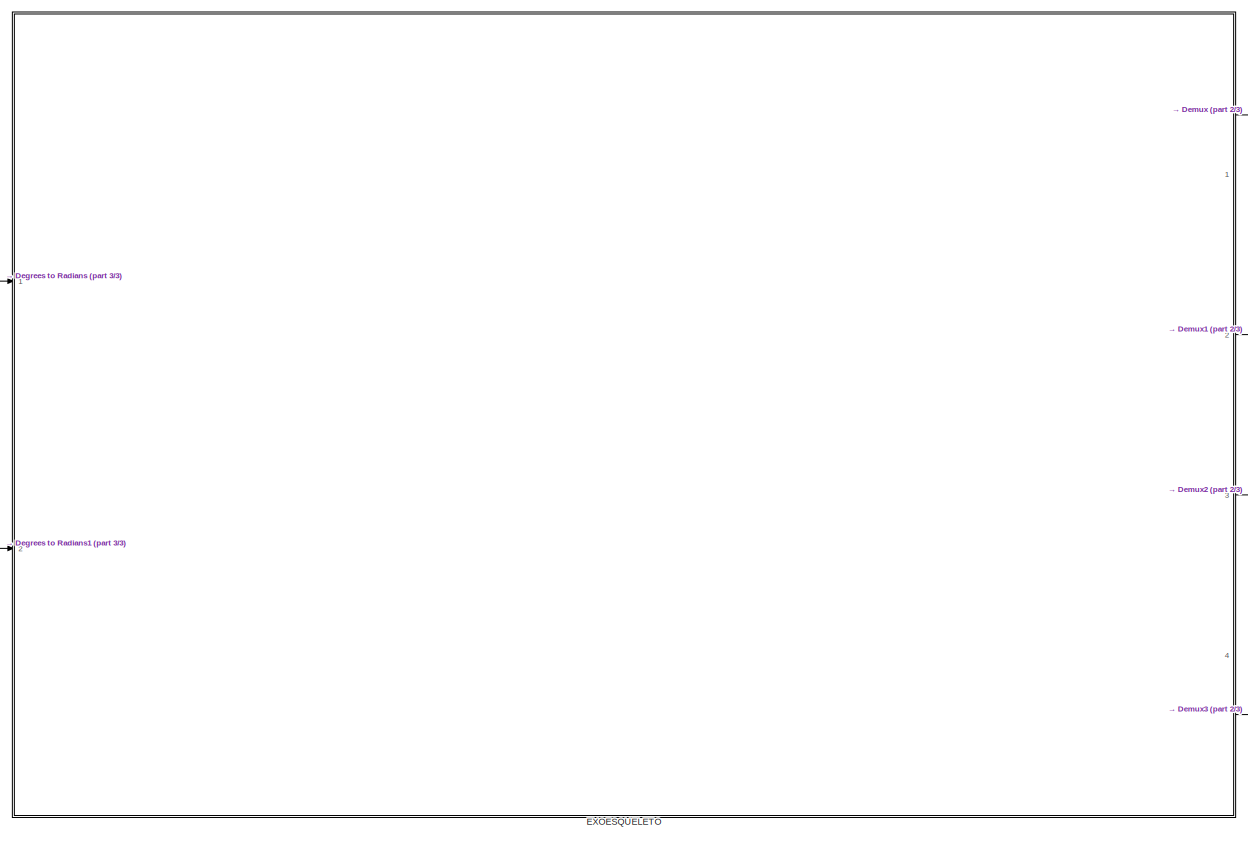
[diagram: root canvas - part 1/3, center side, full height]
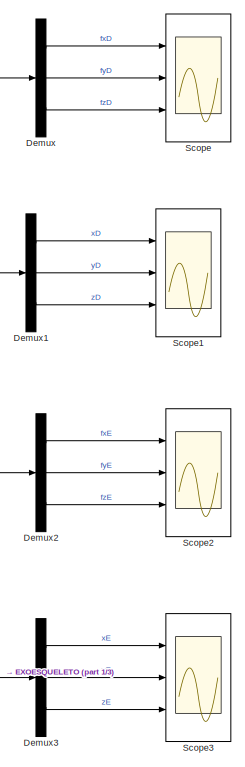
[diagram: root canvas - part 2/3, right side, full height]
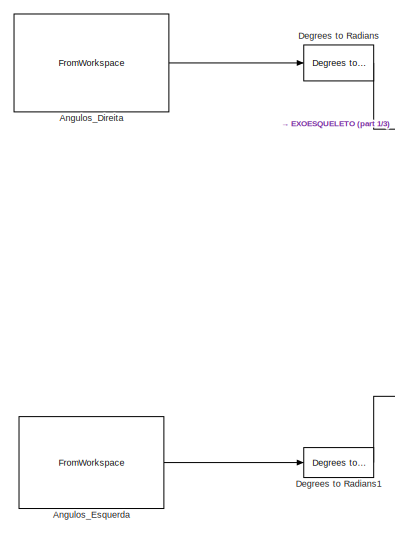
[diagram: root canvas - part 3/3, middle left region]
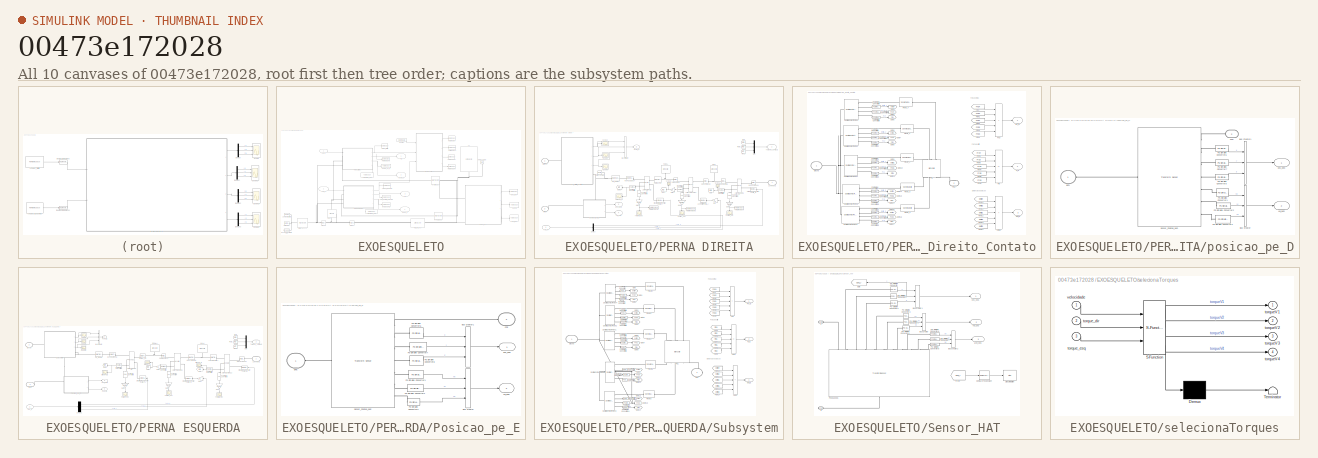
[diagram: thumbnail index - all 10 canvases of the model, root first then tree order]
MODEL slx_00473e172028
KIND model
CONFIG AbsTol = 1e-5
CONFIG EnableMultiTasking = on
CONFIG FixedStep = auto
CONFIG MaxStep = 1e-4
CONFIG MinStep = auto
CONFIG RelTol = 1e-4
CONFIG SampleTimeConstraint = Unconstrained
CONFIG Solver = ode15s
CONFIG SolverName = ode15s
CONFIG StartTime = 0.0
CONFIG StopTime = ts
WORKSPACE source: external: MATLAB File  (data not in archive)
BLOCK [FromWorkspace] Angulos_Direita
  OutputAfterFinalValue = Holding final value
  VariableName = angulos_dir
BLOCK [FromWorkspace] Angulos_Esquerda
  OutputAfterFinalValue = Holding final value
  VariableName = angulos_esq
BLOCK [Reference] Degrees to Radians  REF=simulink_extras/Transformations/Degrees to
Radians
  Ports = [1, 1]
  SourceBlock = simulink_extras/Transformations/Degrees to\nRadians
  SourceProductBaseCode = SL
  SourceType = DegreesToRadians
BLOCK [Reference] Degrees to Radians1  REF=simulink_extras/Transformations/Degrees to
Radians
  Ports = [1, 1]
  SourceBlock = simulink_extras/Transformations/Degrees to\nRadians
  SourceProductBaseCode = SL
  SourceType = DegreesToRadians
BLOCK [Demux] Demux
  Outputs = 3
  Ports = [1, 3]
BLOCK [Demux] Demux1
  Outputs = 3
  Ports = [1, 3]
BLOCK [Demux] Demux2
  Outputs = 3
  Ports = [1, 3]
BLOCK [Demux] Demux3
  Outputs = 3
  Ports = [1, 3]
BLOCK [SubSystem] EXOESQUELETO
  Ports = [2, 4]
  RequestExecContextInheritance = off
BLOCK [Inport] EXOESQUELETO/Ang_E
  Port = 2
BLOCK [Inport] EXOESQUELETO/Ang_R
BLOCK [Constant] EXOESQUELETO/Constant
  Value = velocidade
BLOCK [Outport] EXOESQUELETO/FcD
BLOCK [Outport] EXOESQUELETO/FcE
  Port = 3
BLOCK [ToWorkspace] EXOESQUELETO/Forca_Contato_Esquerda
  FixptAsFi = on
  MaxDataPoints = inf
  Ports = [1]
  SampleTime = -1
  SaveFormat = Timeseries
  VariableName = Fcont_E
BLOCK [Reference] EXOESQUELETO/HAT  REF=sm_lib/Body Elements/Extruded Solid
  NameLocation = top
  Ports = [0, 0, 0, 0, 0, 1]
  SourceBlock = sm_lib/Body Elements/Extruded Solid
  SourceProductBaseCode = MS
  SourceType = Extruded Solid
BLOCK [Reference] EXOESQUELETO/HAT DIR S0 S1  REF=sm_lib/Frames and
Transforms/Rigid
Transform
  NameLocation = top
  Ports = [0, 0, 0, 0, 0, 1, 1]
  SourceBlock = sm_lib/Frames and\nTransforms/Rigid\nTransform
  SourceProductBaseCode = MS
  SourceType = Rigid\nTransform
BLOCK [Reference] EXOESQUELETO/HAT ESQ S0 S1  REF=sm_lib/Frames and
Transforms/Rigid
Transform
  NameLocation = top
  Ports = [0, 0, 0, 0, 0, 1, 1]
  SourceBlock = sm_lib/Frames and\nTransforms/Rigid\nTransform
  SourceProductBaseCode = MS
  SourceType = Rigid\nTransform
BLOCK [Reference] EXOESQUELETO/Mechanism Configuration1  REF=sm_lib/Utilities/Mechanism
Configuration
  Ports = [0, 0, 0, 0, 0, 0, 1]
  SourceBlock = sm_lib/Utilities/Mechanism\nConfiguration
  SourceProductBaseCode = MS
  SourceType = Mechanism\nConfiguration
BLOCK [Reference] EXOESQUELETO/ORIENTA Z_Y, Y_X   REF=sm_lib/Frames and
Transforms/Rigid
Transform
  Ports = [0, 0, 0, 0, 0, 1, 1]
  SourceBlock = sm_lib/Frames and\nTransforms/Rigid\nTransform
  SourceProductBaseCode = MS
  SourceType = Rigid\nTransform
BLOCK [SubSystem] EXOESQUELETO/PERNA DIREITA
  NameLocation = top
  PortSchema = {"entries":[{"content":{"sides":[{"content":{"connectorIds":["In1","LConn1","LConn2","LConn3"]},"type":"ConnectorPlacement.EquallySpacedRectSide","uuid":"cc7b771d-19b2-48a5-9b25-497eb2125d6a"},{"content":{"connectorIds":["Out1","Out2","Out3"],"side":"RIGHT"},"type":"ConnectorPlacement.EquallySpacedRectSide","uuid":"a76f2280-f57a-4bff-8789-f2695d488ae9"},{"content":{"connectorIds":[],"side":"TOP"},...<+433ch>
  Ports = [1, 4, 0, 0, 0, 3]
  RequestExecContextInheritance = off
BLOCK [Inport] EXOESQUELETO/PERNA DIREITA/Ang_R
  IconDisplay = Port number and signal name
BLOCK [PMIOPort] EXOESQUELETO/PERNA DIREITA/BPD
  Port = 3
  Side = Left
BLOCK [BusCreator] EXOESQUELETO/PERNA DIREITA/Bus Creator
  DisplayOption = bar
  InheritFromInputs = on
  Inputs = 3
  Ports = [3, 1]
BLOCK [Reference] EXOESQUELETO/PERNA DIREITA/COXA  REF=sm_lib/Body Elements/Brick Solid
  NameLocation = right
  Ports = [0, 0, 0, 0, 0, 0, 1]
  SourceBlock = sm_lib/Body Elements/Brick Solid
  SourceProductBaseCode = MS
  SourceType = Brick Solid
BLOCK [Reference] EXOESQUELETO/PERNA DIREITA/COXA JOELHO  REF=sm_lib/Frames and
Transforms/Rigid
Transform
  NameLocation = top
  Ports = [0, 0, 0, 0, 0, 1, 1]
  SourceBlock = sm_lib/Frames and\nTransforms/Rigid\nTransform
  SourceProductBaseCode = MS
  SourceType = Rigid\nTransform
BLOCK [Reference] EXOESQUELETO/PERNA DIREITA/COXA QUADRIL  REF=sm_lib/Frames and
Transforms/Rigid
Transform
  Ports = [0, 0, 0, 0, 0, 1, 1]
  SourceBlock = sm_lib/Frames and\nTransforms/Rigid\nTransform
  SourceProductBaseCode = MS
  SourceType = Rigid\nTransform
BLOCK [PMIOPort] EXOESQUELETO/PERNA DIREITA/Conexao D 
  Side = Left
BLOCK [Demux] EXOESQUELETO/PERNA DIREITA/Demux
  Outputs = 3
  Ports = [1, 3]
BLOCK [Outport] EXOESQUELETO/PERNA DIREITA/Fcont_D
  Port = 2
BLOCK [From] EXOESQUELETO/PERNA DIREITA/From
  GotoTag = torQ
  IconDisplay = Tag and signal name
BLOCK [From] EXOESQUELETO/PERNA DIREITA/From1
  GotoTag = torJ
  IconDisplay = Tag and signal name
BLOCK [From] EXOESQUELETO/PERNA DIREITA/From2
  GotoTag = torT
  IconDisplay = Tag and signal name
BLOCK [Gain] EXOESQUELETO/PERNA DIREITA/Gain
  Gain = -1
  NameLocation = top
BLOCK [Gain] EXOESQUELETO/PERNA DIREITA/Gain1
  Gain = -1
  NameLocation = top
BLOCK [Gain] EXOESQUELETO/PERNA DIREITA/Gain2
  Gain = 180/pi
  NameLocation = left
BLOCK [Gain] EXOESQUELETO/PERNA DIREITA/Gain3
  Gain = -180/pi
  NameLocation = left
BLOCK [Gain] EXOESQUELETO/PERNA DIREITA/Gain4
  Gain = 180/pi
  NameLocation = left
BLOCK [Goto] EXOESQUELETO/PERNA DIREITA/Goto
  GotoTag = torQ
BLOCK [Goto] EXOESQUELETO/PERNA DIREITA/Goto1
  GotoTag = torJ
BLOCK [Goto] EXOESQUELETO/PERNA DIREITA/Goto2
  GotoTag = torT
BLOCK [PMIOPort] EXOESQUELETO/PERNA DIREITA/Ground
  NameLocation = top
  Port = 2
  Side = Left
BLOCK [Reference] EXOESQUELETO/PERNA DIREITA/JOINT JOELHO S2  REF=sm_lib/Joints/Revolute Joint
  NameLocation = top
  Ports = [0, 0, 0, 0, 0, 2, 3]
  SourceBlock = sm_lib/Joints/Revolute Joint
  SourceProductBaseCode = MS
  SourceType = Revolute Joint
BLOCK [Reference] EXOESQUELETO/PERNA DIREITA/JOINT QUADRlL S1  REF=sm_lib/Joints/Revolute Joint
  NameLocation = top
  Ports = [0, 0, 0, 0, 0, 2, 3]
  SourceBlock = sm_lib/Joints/Revolute Joint
  SourceProductBaseCode = MS
  SourceType = Revolute Joint
BLOCK [Reference] EXOESQUELETO/PERNA DIREITA/JOINT TORNOZ S3  REF=sm_lib/Joints/Revolute Joint
  NameLocation = top
  Ports = [0, 0, 0, 0, 0, 2, 3]
  SourceBlock = sm_lib/Joints/Revolute Joint
  SourceProductBaseCode = MS
  SourceType = Revolute Joint
BLOCK [Mux] EXOESQUELETO/PERNA DIREITA/Mux
  DisplayOption = bar
  Inputs = 3
  Ports = [3, 1]
BLOCK [Reference] EXOESQUELETO/PERNA DIREITA/PERNA  REF=sm_lib/Body Elements/Brick Solid
  NameLocation = right
  Ports = [0, 0, 0, 0, 0, 0, 1]
  SourceBlock = sm_lib/Body Elements/Brick Solid
  SourceProductBaseCode = MS
  SourceType = Brick Solid
BLOCK [Reference] EXOESQUELETO/PERNA DIREITA/PERNA COXA  REF=sm_lib/Frames and
Transforms/Rigid
Transform
  Ports = [0, 0, 0, 0, 0, 1, 1]
  SourceBlock = sm_lib/Frames and\nTransforms/Rigid\nTransform
  SourceProductBaseCode = MS
  SourceType = Rigid\nTransform
BLOCK [Reference] EXOESQUELETO/PERNA DIREITA/PERNA_PE  REF=sm_lib/Frames and
Transforms/Rigid
Transform
  Ports = [0, 0, 0, 0, 0, 1, 1]
  SourceBlock = sm_lib/Frames and\nTransforms/Rigid\nTransform
  SourceProductBaseCode = MS
  SourceType = Rigid\nTransform
BLOCK [Reference] EXOESQUELETO/PERNA DIREITA/PE_PERNA  REF=sm_lib/Frames and
Transforms/Rigid
Transform
  Ports = [0, 0, 0, 0, 0, 1, 1]
  SourceBlock = sm_lib/Frames and\nTransforms/Rigid\nTransform
  SourceProductBaseCode = MS
  SourceType = Rigid\nTransform
BLOCK [Reference] EXOESQUELETO/PERNA DIREITA/PS-Simulink Converter  REF=nesl_utility/PS-Simulink
Converter
  Ports = [0, 1, 0, 0, 0, 1]
  SourceBlock = nesl_utility/PS-Simulink\nConverter
  SourceProductBaseCode = SS
  SourceType = PS-Simulink\nConverter
BLOCK [Reference] EXOESQUELETO/PERNA DIREITA/PS-Simulink Converter1  REF=nesl_utility/PS-Simulink
Converter
  Ports = [0, 1, 0, 0, 0, 1]
  SourceBlock = nesl_utility/PS-Simulink\nConverter
  SourceProductBaseCode = SS
  SourceType = PS-Simulink\nConverter
BLOCK [Reference] EXOESQUELETO/PERNA DIREITA/PS-Simulink Converter2  REF=nesl_utility/PS-Simulink
Converter
  Ports = [0, 1, 0, 0, 0, 1]
  SourceBlock = nesl_utility/PS-Simulink\nConverter
  SourceProductBaseCode = SS
  SourceType = PS-Simulink\nConverter
BLOCK [Reference] EXOESQUELETO/PERNA DIREITA/PS-Simulink Converter3  REF=nesl_utility/PS-Simulink
Converter
  NameLocation = left
  Ports = [0, 1, 0, 0, 0, 1]
  SourceBlock = nesl_utility/PS-Simulink\nConverter
  SourceProductBaseCode = SS
  SourceType = PS-Simulink\nConverter
BLOCK [Reference] EXOESQUELETO/PERNA DIREITA/PS-Simulink Converter4  REF=nesl_utility/PS-Simulink
Converter
  NameLocation = left
  Ports = [0, 1, 0, 0, 0, 1]
  SourceBlock = nesl_utility/PS-Simulink\nConverter
  SourceProductBaseCode = SS
  SourceType = PS-Simulink\nConverter
BLOCK [Reference] EXOESQUELETO/PERNA DIREITA/PS-Simulink Converter5  REF=nesl_utility/PS-Simulink
Converter
  NameLocation = left
  Ports = [0, 1, 0, 0, 0, 1]
  SourceBlock = nesl_utility/PS-Simulink\nConverter
  SourceProductBaseCode = SS
  SourceType = PS-Simulink\nConverter
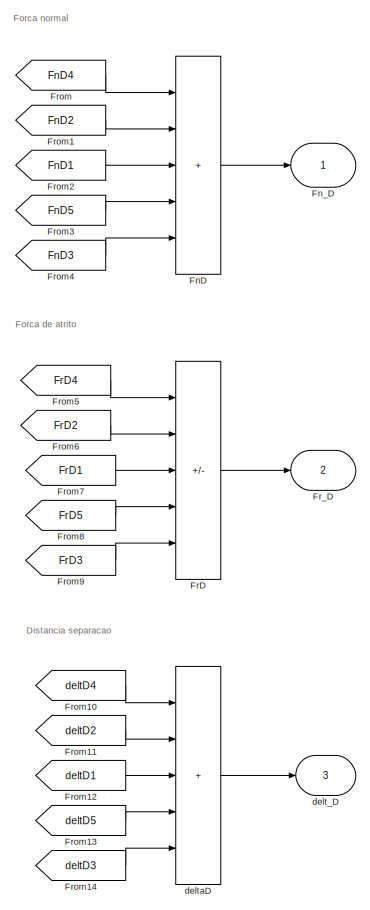
[diagram: EXOESQUELETO/PERNA DIREITA/Pe_Direito_Contato - part 1/2, right side, full height]
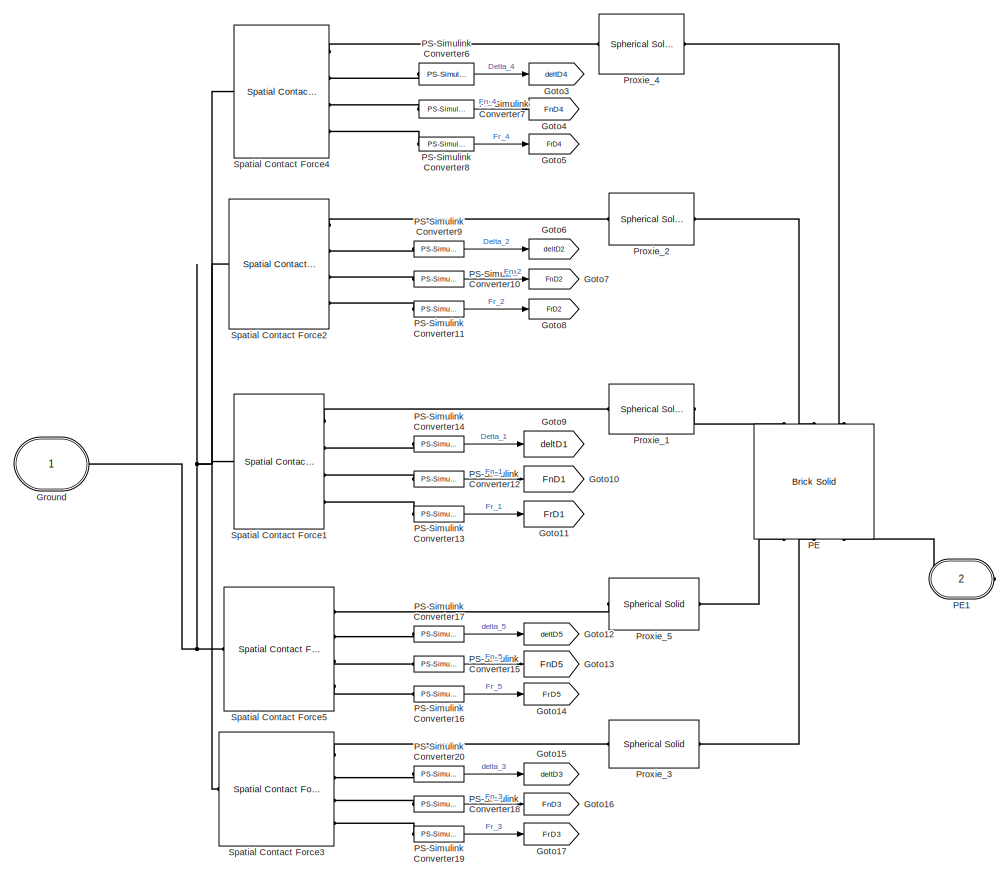
[diagram: EXOESQUELETO/PERNA DIREITA/Pe_Direito_Contato - part 2/2, center side, full height]
BLOCK [SubSystem] EXOESQUELETO/PERNA DIREITA/Pe_Direito_Contato
  Ports = [0, 3, 0, 0, 0, 1, 1]
  RequestExecContextInheritance = off
BLOCK [Sum] EXOESQUELETO/PERNA DIREITA/Pe_Direito_Contato/FnD
  IconShape = rectangular
  Inputs = +++++
  Ports = [5, 1]
BLOCK [Outport] EXOESQUELETO/PERNA DIREITA/Pe_Direito_Contato/Fn_D
BLOCK [Sum] EXOESQUELETO/PERNA DIREITA/Pe_Direito_Contato/FrD
  IconShape = rectangular
  Inputs = ++---
  Ports = [5, 1]
BLOCK [Outport] EXOESQUELETO/PERNA DIREITA/Pe_Direito_Contato/Fr_D
  Port = 2
BLOCK [From] EXOESQUELETO/PERNA DIREITA/Pe_Direito_Contato/From
  GotoTag = FnD4
BLOCK [From] EXOESQUELETO/PERNA DIREITA/Pe_Direito_Contato/From1
  GotoTag = FnD2
BLOCK [From] EXOESQUELETO/PERNA DIREITA/Pe_Direito_Contato/From10
  GotoTag = deltD4
BLOCK [From] EXOESQUELETO/PERNA DIREITA/Pe_Direito_Contato/From11
  GotoTag = deltD2
BLOCK [From] EXOESQUELETO/PERNA DIREITA/Pe_Direito_Contato/From12
  GotoTag = deltD1
BLOCK [From] EXOESQUELETO/PERNA DIREITA/Pe_Direito_Contato/From13
  GotoTag = deltD5
BLOCK [From] EXOESQUELETO/PERNA DIREITA/Pe_Direito_Contato/From14
  GotoTag = deltD3
BLOCK [From] EXOESQUELETO/PERNA DIREITA/Pe_Direito_Contato/From2
  GotoTag = FnD1
BLOCK [From] EXOESQUELETO/PERNA DIREITA/Pe_Direito_Contato/From3
  GotoTag = FnD5
BLOCK [From] EXOESQUELETO/PERNA DIREITA/Pe_Direito_Contato/From4
  GotoTag = FnD3
BLOCK [From] EXOESQUELETO/PERNA DIREITA/Pe_Direito_Contato/From5
  GotoTag = FrD4
BLOCK [From] EXOESQUELETO/PERNA DIREITA/Pe_Direito_Contato/From6
  GotoTag = FrD2
BLOCK [From] EXOESQUELETO/PERNA DIREITA/Pe_Direito_Contato/From7
  GotoTag = FrD1
BLOCK [From] EXOESQUELETO/PERNA DIREITA/Pe_Direito_Contato/From8
  GotoTag = FrD5
BLOCK [From] EXOESQUELETO/PERNA DIREITA/Pe_Direito_Contato/From9
  GotoTag = FrD3
BLOCK [Goto] EXOESQUELETO/PERNA DIREITA/Pe_Direito_Contato/Goto10
  GotoTag = FnD1
BLOCK [Goto] EXOESQUELETO/PERNA DIREITA/Pe_Direito_Contato/Goto11
  GotoTag = FrD1
BLOCK [Goto] EXOESQUELETO/PERNA DIREITA/Pe_Direito_Contato/Goto12
  GotoTag = deltD5
BLOCK [Goto] EXOESQUELETO/PERNA DIREITA/Pe_Direito_Contato/Goto13
  GotoTag = FnD5
BLOCK [Goto] EXOESQUELETO/PERNA DIREITA/Pe_Direito_Contato/Goto14
  GotoTag = FrD5
BLOCK [Goto] EXOESQUELETO/PERNA DIREITA/Pe_Direito_Contato/Goto15
  GotoTag = deltD3
BLOCK [Goto] EXOESQUELETO/PERNA DIREITA/Pe_Direito_Contato/Goto16
  GotoTag = FnD3
BLOCK [Goto] EXOESQUELETO/PERNA DIREITA/Pe_Direito_Contato/Goto17
  GotoTag = FrD3
BLOCK [Goto] EXOESQUELETO/PERNA DIREITA/Pe_Direito_Contato/Goto3
  GotoTag = deltD4
BLOCK [Goto] EXOESQUELETO/PERNA DIREITA/Pe_Direito_Contato/Goto4
  GotoTag = FnD4
BLOCK [Goto] EXOESQUELETO/PERNA DIREITA/Pe_Direito_Contato/Goto5
  GotoTag = FrD4
BLOCK [Goto] EXOESQUELETO/PERNA DIREITA/Pe_Direito_Contato/Goto6
  GotoTag = deltD2
BLOCK [Goto] EXOESQUELETO/PERNA DIREITA/Pe_Direito_Contato/Goto7
  GotoTag = FnD2
BLOCK [Goto] EXOESQUELETO/PERNA DIREITA/Pe_Direito_Contato/Goto8
  GotoTag = FrD2
BLOCK [Goto] EXOESQUELETO/PERNA DIREITA/Pe_Direito_Contato/Goto9
  GotoTag = deltD1
BLOCK [PMIOPort] EXOESQUELETO/PERNA DIREITA/Pe_Direito_Contato/Ground
  Side = Left
BLOCK [Reference] EXOESQUELETO/PERNA DIREITA/Pe_Direito_Contato/PE  REF=sm_lib/Body Elements/Brick Solid
  NameLocation = left
  Ports = [0, 0, 0, 0, 0, 3, 3]
  SourceBlock = sm_lib/Body Elements/Brick Solid
  SourceProductBaseCode = MS
  SourceType = Brick Solid
BLOCK [PMIOPort] EXOESQUELETO/PERNA DIREITA/Pe_Direito_Contato/PE1
  Port = 2
  Side = Right
BLOCK [Reference] EXOESQUELETO/PERNA DIREITA/Pe_Direito_Contato/PS-Simulink Converter10  REF=nesl_utility/PS-Simulink
Converter
  Ports = [0, 1, 0, 0, 0, 1]
  SourceBlock = nesl_utility/PS-Simulink\nConverter
  SourceProductBaseCode = SS
  SourceType = PS-Simulink\nConverter
BLOCK [Reference] EXOESQUELETO/PERNA DIREITA/Pe_Direito_Contato/PS-Simulink Converter11  REF=nesl_utility/PS-Simulink
Converter
  Ports = [0, 1, 0, 0, 0, 1]
  SourceBlock = nesl_utility/PS-Simulink\nConverter
  SourceProductBaseCode = SS
  SourceType = PS-Simulink\nConverter
BLOCK [Reference] EXOESQUELETO/PERNA DIREITA/Pe_Direito_Contato/PS-Simulink Converter12  REF=nesl_utility/PS-Simulink
Converter
  Ports = [0, 1, 0, 0, 0, 1]
  SourceBlock = nesl_utility/PS-Simulink\nConverter
  SourceProductBaseCode = SS
  SourceType = PS-Simulink\nConverter
BLOCK [Reference] EXOESQUELETO/PERNA DIREITA/Pe_Direito_Contato/PS-Simulink Converter13  REF=nesl_utility/PS-Simulink
Converter
  Ports = [0, 1, 0, 0, 0, 1]
  SourceBlock = nesl_utility/PS-Simulink\nConverter
  SourceProductBaseCode = SS
  SourceType = PS-Simulink\nConverter
BLOCK [Reference] EXOESQUELETO/PERNA DIREITA/Pe_Direito_Contato/PS-Simulink Converter14  REF=nesl_utility/PS-Simulink
Converter
  Ports = [0, 1, 0, 0, 0, 1]
  SourceBlock = nesl_utility/PS-Simulink\nConverter
  SourceProductBaseCode = SS
  SourceType = PS-Simulink\nConverter
BLOCK [Reference] EXOESQUELETO/PERNA DIREITA/Pe_Direito_Contato/PS-Simulink Converter15  REF=nesl_utility/PS-Simulink
Converter
  Ports = [0, 1, 0, 0, 0, 1]
  SourceBlock = nesl_utility/PS-Simulink\nConverter
  SourceProductBaseCode = SS
  SourceType = PS-Simulink\nConverter
BLOCK [Reference] EXOESQUELETO/PERNA DIREITA/Pe_Direito_Contato/PS-Simulink Converter16  REF=nesl_utility/PS-Simulink
Converter
  Ports = [0, 1, 0, 0, 0, 1]
  SourceBlock = nesl_utility/PS-Simulink\nConverter
  SourceProductBaseCode = SS
  SourceType = PS-Simulink\nConverter
BLOCK [Reference] EXOESQUELETO/PERNA DIREITA/Pe_Direito_Contato/PS-Simulink Converter17  REF=nesl_utility/PS-Simulink
Converter
  Ports = [0, 1, 0, 0, 0, 1]
  SourceBlock = nesl_utility/PS-Simulink\nConverter
  SourceProductBaseCode = SS
  SourceType = PS-Simulink\nConverter
BLOCK [Reference] EXOESQUELETO/PERNA DIREITA/Pe_Direito_Contato/PS-Simulink Converter18  REF=nesl_utility/PS-Simulink
Converter
  Ports = [0, 1, 0, 0, 0, 1]
  SourceBlock = nesl_utility/PS-Simulink\nConverter
  SourceProductBaseCode = SS
  SourceType = PS-Simulink\nConverter
BLOCK [Reference] EXOESQUELETO/PERNA DIREITA/Pe_Direito_Contato/PS-Simulink Converter19  REF=nesl_utility/PS-Simulink
Converter
  Ports = [0, 1, 0, 0, 0, 1]
  SourceBlock = nesl_utility/PS-Simulink\nConverter
  SourceProductBaseCode = SS
  SourceType = PS-Simulink\nConverter
BLOCK [Reference] EXOESQUELETO/PERNA DIREITA/Pe_Direito_Contato/PS-Simulink Converter20  REF=nesl_utility/PS-Simulink
Converter
  Ports = [0, 1, 0, 0, 0, 1]
  SourceBlock = nesl_utility/PS-Simulink\nConverter
  SourceProductBaseCode = SS
  SourceType = PS-Simulink\nConverter
BLOCK [Reference] EXOESQUELETO/PERNA DIREITA/Pe_Direito_Contato/PS-Simulink Converter6  REF=nesl_utility/PS-Simulink
Converter
  NameLocation = top
  Ports = [0, 1, 0, 0, 0, 1]
  SourceBlock = nesl_utility/PS-Simulink\nConverter
  SourceProductBaseCode = SS
  SourceType = PS-Simulink\nConverter
BLOCK [Reference] EXOESQUELETO/PERNA DIREITA/Pe_Direito_Contato/PS-Simulink Converter7  REF=nesl_utility/PS-Simulink
Converter
  NameLocation = top
  Ports = [0, 1, 0, 0, 0, 1]
  SourceBlock = nesl_utility/PS-Simulink\nConverter
  SourceProductBaseCode = SS
  SourceType = PS-Simulink\nConverter
BLOCK [Reference] EXOESQUELETO/PERNA DIREITA/Pe_Direito_Contato/PS-Simulink Converter8  REF=nesl_utility/PS-Simulink
Converter
  NameLocation = top
  Ports = [0, 1, 0, 0, 0, 1]
  SourceBlock = nesl_utility/PS-Simulink\nConverter
  SourceProductBaseCode = SS
  SourceType = PS-Simulink\nConverter
BLOCK [Reference] EXOESQUELETO/PERNA DIREITA/Pe_Direito_Contato/PS-Simulink Converter9  REF=nesl_utility/PS-Simulink
Converter
  Ports = [0, 1, 0, 0, 0, 1]
  SourceBlock = nesl_utility/PS-Simulink\nConverter
  SourceProductBaseCode = SS
  SourceType = PS-Simulink\nConverter
BLOCK [Reference] EXOESQUELETO/PERNA DIREITA/Pe_Direito_Contato/Proxie_1  REF=sm_lib/Body Elements/Spherical Solid
  Ports = [0, 0, 0, 0, 0, 1, 1]
  SourceBlock = sm_lib/Body Elements/Spherical Solid
  SourceProductBaseCode = MS
  SourceType = Spherical Solid
BLOCK [Reference] EXOESQUELETO/PERNA DIREITA/Pe_Direito_Contato/Proxie_2  REF=sm_lib/Body Elements/Spherical Solid
  Ports = [0, 0, 0, 0, 0, 1, 1]
  SourceBlock = sm_lib/Body Elements/Spherical Solid
  SourceProductBaseCode = MS
  SourceType = Spherical Solid
BLOCK [Reference] EXOESQUELETO/PERNA DIREITA/Pe_Direito_Contato/Proxie_3  REF=sm_lib/Body Elements/Spherical Solid
  Ports = [0, 0, 0, 0, 0, 1, 1]
  SourceBlock = sm_lib/Body Elements/Spherical Solid
  SourceProductBaseCode = MS
  SourceType = Spherical Solid
BLOCK [Reference] EXOESQUELETO/PERNA DIREITA/Pe_Direito_Contato/Proxie_4  REF=sm_lib/Body Elements/Spherical Solid
  Ports = [0, 0, 0, 0, 0, 1, 1]
  SourceBlock = sm_lib/Body Elements/Spherical Solid
  SourceProductBaseCode = MS
  SourceType = Spherical Solid
BLOCK [Reference] EXOESQUELETO/PERNA DIREITA/Pe_Direito_Contato/Proxie_5  REF=sm_lib/Body Elements/Spherical Solid
  Ports = [0, 0, 0, 0, 0, 1, 1]
  SourceBlock = sm_lib/Body Elements/Spherical Solid
  SourceProductBaseCode = MS
  SourceType = Spherical Solid
BLOCK [Reference] EXOESQUELETO/PERNA DIREITA/Pe_Direito_Contato/Spatial Contact Force1  REF=sm_lib/Forces and
Torques/Spatial
Contact Force
  NameLocation = top
  Ports = [0, 0, 0, 0, 0, 1, 4]
  SourceBlock = sm_lib/Forces and\nTorques/Spatial\nContact Force
  SourceProductBaseCode = MS
  SourceType = Spatial\nContact Force
BLOCK [Reference] EXOESQUELETO/PERNA DIREITA/Pe_Direito_Contato/Spatial Contact Force2  REF=sm_lib/Forces and
Torques/Spatial
Contact Force
  NameLocation = top
  Ports = [0, 0, 0, 0, 0, 1, 4]
  SourceBlock = sm_lib/Forces and\nTorques/Spatial\nContact Force
  SourceProductBaseCode = MS
  SourceType = Spatial\nContact Force
BLOCK [Reference] EXOESQUELETO/PERNA DIREITA/Pe_Direito_Contato/Spatial Contact Force3  REF=sm_lib/Forces and
Torques/Spatial
Contact Force
  Ports = [0, 0, 0, 0, 0, 1, 4]
  SourceBlock = sm_lib/Forces and\nTorques/Spatial\nContact Force
  SourceProductBaseCode = MS
  SourceType = Spatial\nContact Force
BLOCK [Reference] EXOESQUELETO/PERNA DIREITA/Pe_Direito_Contato/Spatial Contact Force4  REF=sm_lib/Forces and
Torques/Spatial
Contact Force
  NameLocation = top
  Ports = [0, 0, 0, 0, 0, 1, 4]
  SourceBlock = sm_lib/Forces and\nTorques/Spatial\nContact Force
  SourceProductBaseCode = MS
  SourceType = Spatial\nContact Force
BLOCK [Reference] EXOESQUELETO/PERNA DIREITA/Pe_Direito_Contato/Spatial Contact Force5  REF=sm_lib/Forces and
Torques/Spatial
Contact Force
  NameLocation = top
  Ports = [0, 0, 0, 0, 0, 1, 4]
  SourceBlock = sm_lib/Forces and\nTorques/Spatial\nContact Force
  SourceProductBaseCode = MS
  SourceType = Spatial\nContact Force
BLOCK [Outport] EXOESQUELETO/PERNA DIREITA/Pe_Direito_Contato/delt_D
  Port = 3
BLOCK [Sum] EXOESQUELETO/PERNA DIREITA/Pe_Direito_Contato/deltaD
  IconShape = rectangular
  Inputs = +++++
  Ports = [5, 1]
BLOCK [Reference] EXOESQUELETO/PERNA DIREITA/ROTACAO S0 S1  REF=sm_lib/Frames and
Transforms/Rigid
Transform
  NameLocation = top
  Ports = [0, 0, 0, 0, 0, 1, 1]
  SourceBlock = sm_lib/Frames and\nTransforms/Rigid\nTransform
  SourceProductBaseCode = MS
  SourceType = Rigid\nTransform
BLOCK [Reference] EXOESQUELETO/PERNA DIREITA/ROTACAO S3 S4  REF=sm_lib/Frames and
Transforms/Rigid
Transform
  NameLocation = top
  Ports = [0, 0, 0, 0, 0, 1, 1]
  SourceBlock = sm_lib/Frames and\nTransforms/Rigid\nTransform
  SourceProductBaseCode = MS
  SourceType = Rigid\nTransform
BLOCK [Reference] EXOESQUELETO/PERNA DIREITA/Reference Frame  REF=sm_lib/Frames and
Transforms/Reference
Frame
  Ports = [0, 0, 0, 0, 0, 0, 1]
  SourceBlock = sm_lib/Frames and\nTransforms/Reference\nFrame
  SourceProductBaseCode = MS
  SourceType = Reference\nFrame
BLOCK [Scope] EXOESQUELETO/PERNA DIREITA/Scope1
  Floating = off
  NameLocation = right
  NumInputPorts = 1
  Ports = [1]
  ScopeSpecificationString = Simulink.scopes.TimeScopeBlockCfg('CurrentConfiguration', extmgr.ConfigurationSet(extmgr.Configuration('Core','General UI',true),extmgr.Configuration('Core','Source UI',true),extmgr.Configuration('Sources','WiredSimulink',true,'DataLoggingVariableName','ScopeData1'),extmgr.Configuration('Visuals','Time Domain',true,'SerializedDisplays',{struct('MinYLimReal','-467.37132','MaxYLimReal','75.27676','Y...<+1476ch>
BLOCK [Scope] EXOESQUELETO/PERNA DIREITA/Scope2
  Floating = off
  NameLocation = right
  NumInputPorts = 1
  Ports = [1]
  ScopeSpecificationString = Simulink.scopes.TimeScopeBlockCfg('CurrentConfiguration', extmgr.ConfigurationSet(extmgr.Configuration('Core','General UI',true),extmgr.Configuration('Core','Source UI',true),extmgr.Configuration('Sources','WiredSimulink',true,'DataLoggingVariableName','ScopeData2'),extmgr.Configuration('Visuals','Time Domain',true,'SerializedDisplays',{struct('MinYLimReal','-52.90548','MaxYLimReal','300.15664','Y...<+1458ch>
BLOCK [Scope] EXOESQUELETO/PERNA DIREITA/Scope3
  Floating = off
  NumInputPorts = 1
  Ports = [1]
  ScopeSpecificationString = Simulink.scopes.TimeScopeBlockCfg('CurrentConfiguration', extmgr.ConfigurationSet(extmgr.Configuration('Core','General UI',true),extmgr.Configuration('Core','Source UI',true),extmgr.Configuration('Sources','WiredSimulink',true,'DataLoggingVariableName','ScopeData2'),extmgr.Configuration('Visuals','Time Domain',true,'SerializedDisplays',{struct('MinYLimReal','-95.14951','MaxYLimReal','856.34555','Y...<+1473ch>
BLOCK [Scope] EXOESQUELETO/PERNA DIREITA/Scope4
  Floating = off
  NumInputPorts = 1
  Ports = [1]
  ScopeSpecificationString = Simulink.scopes.TimeScopeBlockCfg('CurrentConfiguration', extmgr.ConfigurationSet(extmgr.Configuration('Core','General UI',true),extmgr.Configuration('Core','Source UI',true),extmgr.Configuration('Sources','WiredSimulink',true,'DataLoggingVariableName','ScopeData1'),extmgr.Configuration('Visuals','Time Domain',true,'SerializedDisplays',{struct('MinYLimReal','-138.92724','MaxYLimReal','460.91339','...<+1458ch>
BLOCK [Scope] EXOESQUELETO/PERNA DIREITA/Scope5
  Floating = off
  NumInputPorts = 1
  Ports = [1]
  ScopeSpecificationString = Simulink.scopes.TimeScopeBlockCfg('CurrentConfiguration', extmgr.ConfigurationSet(extmgr.Configuration('Core','General UI',true),extmgr.Configuration('Core','Source UI',true),extmgr.Configuration('Sources','WiredSimulink',true,'DataLoggingVariableName','ScopeData2'),extmgr.Configuration('Visuals','Time Domain',true,'SerializedDisplays',{struct('MinYLimReal','-0.11163','MaxYLimReal','0.98244','YLab...<+1435ch>
BLOCK [Reference] EXOESQUELETO/PERNA DIREITA/Simulink-PS Converter Theta_J  REF=nesl_utility/Simulink-PS
Converter
  Ports = [1, 0, 0, 0, 0, 0, 1]
  SourceBlock = nesl_utility/Simulink-PS\nConverter
  SourceProductBaseCode = SS
  SourceType = Simulink-PS\nConverter
BLOCK [Reference] EXOESQUELETO/PERNA DIREITA/Simulink-PS Converter Theta_Q  REF=nesl_utility/Simulink-PS
Converter
  Ports = [1, 0, 0, 0, 0, 0, 1]
  SourceBlock = nesl_utility/Simulink-PS\nConverter
  SourceProductBaseCode = SS
  SourceType = Simulink-PS\nConverter
BLOCK [Reference] EXOESQUELETO/PERNA DIREITA/Simulink-PS Converter Theta_T  REF=nesl_utility/Simulink-PS
Converter
  NameLocation = top
  Ports = [1, 0, 0, 0, 0, 0, 1]
  SourceBlock = nesl_utility/Simulink-PS\nConverter
  SourceProductBaseCode = SS
  SourceType = Simulink-PS\nConverter
BLOCK [Scope] EXOESQUELETO/PERNA DIREITA/ThetaJ_out
  Floating = off
  NameLocation = right
  NumInputPorts = 1
  Ports = [1]
  ScopeSpecificationString = Simulink.scopes.TimeScopeBlockCfg('CurrentConfiguration', extmgr.ConfigurationSet(extmgr.Configuration('Core','General UI',true),extmgr.Configuration('Core','Source UI',true),extmgr.Configuration('Sources','WiredSimulink',true,'DataLoggingVariableName','ScopeData3'),extmgr.Configuration('Visuals','Time Domain',true,'SerializedDisplays',{struct('MinYLimReal','4.55207','MaxYLimReal','67.56286','YLab...<+1432ch>
BLOCK [Scope] EXOESQUELETO/PERNA DIREITA/ThetaQ_out
  Floating = off
  NameLocation = right
  NumInputPorts = 1
  Ports = [1]
  ScopeSpecificationString = Simulink.scopes.TimeScopeBlockCfg('CurrentConfiguration', extmgr.ConfigurationSet(extmgr.Configuration('Core','General UI',true),extmgr.Configuration('Core','Source UI',true),extmgr.Configuration('Sources','WiredSimulink',true,'DataLoggingVariableName','ScopeData2'),extmgr.Configuration('Visuals','Time Domain',true,'SerializedDisplays',{struct('MinYLimReal','-31.11503','MaxYLimReal','39.08974','YL...<+1423ch>
BLOCK [Scope] EXOESQUELETO/PERNA DIREITA/ThetaT_out
  Floating = off
  NameLocation = right
  NumInputPorts = 1
  Ports = [1]
  ScopeSpecificationString = Simulink.scopes.TimeScopeBlockCfg('CurrentConfiguration', extmgr.ConfigurationSet(extmgr.Configuration('Core','General UI',true),extmgr.Configuration('Core','Source UI',true),extmgr.Configuration('Sources','WiredSimulink',true,'DataLoggingVariableName','ScopeData4'),extmgr.Configuration('Visuals','Time Domain',true,'SerializedDisplays',{struct('MinYLimReal','-9.46252','MaxYLimReal','15.46434','YLa...<+1420ch>
BLOCK [ToWorkspace] EXOESQUELETO/PERNA DIREITA/To Workspace
  FixptAsFi = on
  MaxDataPoints = inf
  Ports = [1]
  SampleTime = -1
  SaveFormat = Timeseries
  VariableName = thetaQ_out
BLOCK [ToWorkspace] EXOESQUELETO/PERNA DIREITA/To Workspace1
  FixptAsFi = on
  MaxDataPoints = inf
  Ports = [1]
  SampleTime = -1
  SaveFormat = Timeseries
  VariableName = thetaJ_out
BLOCK [ToWorkspace] EXOESQUELETO/PERNA DIREITA/To Workspace2
  FixptAsFi = on
  MaxDataPoints = inf
  Ports = [1]
  SampleTime = -1
  SaveFormat = Timeseries
  VariableName = thetaT_out
BLOCK [Scope] EXOESQUELETO/PERNA DIREITA/TorqueT_D
  Floating = off
  NameLocation = top
  NumInputPorts = 1
  Ports = [1]
  ScopeSpecificationString = Simulink.scopes.TimeScopeBlockCfg('CurrentConfiguration', extmgr.ConfigurationSet(extmgr.Configuration('Core','General UI',true),extmgr.Configuration('Core','Source UI',true),extmgr.Configuration('Sources','WiredSimulink',true,'DataLoggingVariableName','ScopeData1'),extmgr.Configuration('Visuals','Time Domain',true,'SerializedDisplays',{struct('MinYLimReal','-95.24474','MaxYLimReal','12.2713','YLa...<+1511ch>
BLOCK [Outport] EXOESQUELETO/PERNA DIREITA/Torques_JuntasD 
  VectorParamsAs1DForOutWhenUnconnected = off
BLOCK [Outport] EXOESQUELETO/PERNA DIREITA/pos_peD
  Port = 3
BLOCK [SubSystem] EXOESQUELETO/PERNA DIREITA/posicao_pe_D
  PortSchema = {"entries":[{"content":{"sides":[{"content":{"connectorIds":["LConn1"]},"type":"ConnectorPlacement.EquallySpacedRectSide","uuid":"d1ecfdf8-7ebe-4af1-bf63-6510536b3168"},{"content":{"connectorIds":["Out1","Out2"],"side":"RIGHT"},"type":"ConnectorPlacement.EquallySpacedRectSide","uuid":"ea2203bb-aad8-4cc6-b714-1d05e8985fb0"},{"content":{"connectorIds":["LConn2"],"side":"TOP"},"type":"ConnectorPlacem...<+404ch>
  Ports = [0, 2, 0, 0, 0, 2]
  RequestExecContextInheritance = off
BLOCK [PMIOPort] EXOESQUELETO/PERNA DIREITA/posicao_pe_D/BPD
  Side = Left
BLOCK [BusCreator] EXOESQUELETO/PERNA DIREITA/posicao_pe_D/Bus Creator
  DisplayOption = bar
  InheritFromInputs = on
  Inputs = 3
  Ports = [3, 1]
BLOCK [BusCreator] EXOESQUELETO/PERNA DIREITA/posicao_pe_D/Bus Creator1
  DisplayOption = bar
  InheritFromInputs = on
  Inputs = 3
  Ports = [3, 1]
BLOCK [PMIOPort] EXOESQUELETO/PERNA DIREITA/posicao_pe_D/FPD
  NameLocation = top
  Port = 2
  Side = Left
BLOCK [Reference] EXOESQUELETO/PERNA DIREITA/posicao_pe_D/PS-Simulink Converter1  REF=nesl_utility/PS-Simulink
Converter
  Ports = [0, 1, 0, 0, 0, 1]
  SourceBlock = nesl_utility/PS-Simulink\nConverter
  SourceProductBaseCode = SS
  SourceType = PS-Simulink\nConverter
BLOCK [Reference] EXOESQUELETO/PERNA DIREITA/posicao_pe_D/PS-Simulink Converter2  REF=nesl_utility/PS-Simulink
Converter
  Ports = [0, 1, 0, 0, 0, 1]
  SourceBlock = nesl_utility/PS-Simulink\nConverter
  SourceProductBaseCode = SS
  SourceType = PS-Simulink\nConverter
BLOCK [Reference] EXOESQUELETO/PERNA DIREITA/posicao_pe_D/PS-Simulink Converter3  REF=nesl_utility/PS-Simulink
Converter
  Ports = [0, 1, 0, 0, 0, 1]
  SourceBlock = nesl_utility/PS-Simulink\nConverter
  SourceProductBaseCode = SS
  SourceType = PS-Simulink\nConverter
BLOCK [Reference] EXOESQUELETO/PERNA DIREITA/posicao_pe_D/PS-Simulink Converter6  REF=nesl_utility/PS-Simulink
Converter
  Ports = [0, 1, 0, 0, 0, 1]
  SourceBlock = nesl_utility/PS-Simulink\nConverter
  SourceProductBaseCode = SS
  SourceType = PS-Simulink\nConverter
BLOCK [Reference] EXOESQUELETO/PERNA DIREITA/posicao_pe_D/PS-Simulink Converter7  REF=nesl_utility/PS-Simulink
Converter
  Ports = [0, 1, 0, 0, 0, 1]
  SourceBlock = nesl_utility/PS-Simulink\nConverter
  SourceProductBaseCode = SS
  SourceType = PS-Simulink\nConverter
BLOCK [Reference] EXOESQUELETO/PERNA DIREITA/posicao_pe_D/PS-Simulink Converter8  REF=nesl_utility/PS-Simulink
Converter
  Ports = [0, 1, 0, 0, 0, 1]
  SourceBlock = nesl_utility/PS-Simulink\nConverter
  SourceProductBaseCode = SS
  SourceType = PS-Simulink\nConverter
BLOCK [Reference] EXOESQUELETO/PERNA DIREITA/posicao_pe_D/Sensor_Posicao_peD  REF=sm_lib/Frames and
Transforms/Transform
Sensor
  Ports = [0, 0, 0, 0, 0, 1, 7]
  SourceBlock = sm_lib/Frames and\nTransforms/Transform\nSensor
  SourceProductBaseCode = MS
  SourceType = Transform\nSensor
BLOCK [Outport] EXOESQUELETO/PERNA DIREITA/posicao_pe_D/pos_peD
BLOCK [Outport] EXOESQUELETO/PERNA DIREITA/posicao_pe_D/vel_peD
  Port = 2
BLOCK [Outport] EXOESQUELETO/PERNA DIREITA/vel_peD
  Port = 4
BLOCK [SubSystem] EXOESQUELETO/PERNA ESQUERDA
  NameLocation = top
  PortSchema = {"entries":[{"content":{"sides":[{"content":{"connectorIds":["In1","LConn1","LConn2","LConn3"]},"type":"ConnectorPlacement.EquallySpacedRectSide","uuid":"cc7b771d-19b2-48a5-9b25-497eb2125d6a"},{"content":{"connectorIds":["Out1","Out2","Out3"],"side":"RIGHT"},"type":"ConnectorPlacement.EquallySpacedRectSide","uuid":"a76f2280-f57a-4bff-8789-f2695d488ae9"},{"content":{"connectorIds":[],"side":"TOP"},...<+433ch>
  Ports = [1, 4, 0, 0, 0, 3]
  RequestExecContextInheritance = off
BLOCK [Inport] EXOESQUELETO/PERNA ESQUERDA/Ang_E
  IconDisplay = Port number and signal name
BLOCK [PMIOPort] EXOESQUELETO/PERNA ESQUERDA/BPE
  Port = 3
  Side = Left
BLOCK [BusCreator] EXOESQUELETO/PERNA ESQUERDA/Bus Creator
  DisplayOption = bar
  InheritFromInputs = on
  Inputs = 3
  Ports = [3, 1]
BLOCK [Reference] EXOESQUELETO/PERNA ESQUERDA/COXA JOELHO1  REF=sm_lib/Frames and
Transforms/Rigid
Transform
  NameLocation = top
  Ports = [0, 0, 0, 0, 0, 1, 1]
  SourceBlock = sm_lib/Frames and\nTransforms/Rigid\nTransform
  SourceProductBaseCode = MS
  SourceType = Rigid\nTransform
BLOCK [Reference] EXOESQUELETO/PERNA ESQUERDA/COXA QUADRIL1  REF=sm_lib/Frames and
Transforms/Rigid
Transform
  NameLocation = top
  Ports = [0, 0, 0, 0, 0, 1, 1]
  SourceBlock = sm_lib/Frames and\nTransforms/Rigid\nTransform
  SourceProductBaseCode = MS
  SourceType = Rigid\nTransform
BLOCK [Reference] EXOESQUELETO/PERNA ESQUERDA/COXA1  REF=sm_lib/Body Elements/Brick Solid
  NameLocation = top
  Ports = [0, 0, 0, 0, 0, 0, 1]
  SourceBlock = sm_lib/Body Elements/Brick Solid
  SourceProductBaseCode = MS
  SourceType = Brick Solid
BLOCK [PMIOPort] EXOESQUELETO/PERNA ESQUERDA/Conexao E
  Side = Left
BLOCK [Demux] EXOESQUELETO/PERNA ESQUERDA/Demux1
  Outputs = 3
  Ports = [1, 3]
BLOCK [Outport] EXOESQUELETO/PERNA ESQUERDA/Fcont_E
  Port = 2
BLOCK [From] EXOESQUELETO/PERNA ESQUERDA/From
  GotoTag = torQ
  IconDisplay = Tag and signal name
BLOCK [From] EXOESQUELETO/PERNA ESQUERDA/From1
  GotoTag = torJ
  IconDisplay = Tag and signal name
BLOCK [From] EXOESQUELETO/PERNA ESQUERDA/From2
  GotoTag = torT
  IconDisplay = Tag and signal name
BLOCK [Gain] EXOESQUELETO/PERNA ESQUERDA/Gain
  Gain = 180/pi
  NameLocation = left
BLOCK [Gain] EXOESQUELETO/PERNA ESQUERDA/Gain1
  Gain = -1
  NameLocation = top
BLOCK [Gain] EXOESQUELETO/PERNA ESQUERDA/Gain2
  Gain = -1
  NameLocation = top
BLOCK [Gain] EXOESQUELETO/PERNA ESQUERDA/Gain3
  Gain = -180/pi
  NameLocation = left
BLOCK [Gain] EXOESQUELETO/PERNA ESQUERDA/Gain4
  Gain = 180/pi
  NameLocation = left
BLOCK [Goto] EXOESQUELETO/PERNA ESQUERDA/Goto
  GotoTag = torQ
BLOCK [Goto] EXOESQUELETO/PERNA ESQUERDA/Goto1
  GotoTag = torJ
BLOCK [Goto] EXOESQUELETO/PERNA ESQUERDA/Goto2
  GotoTag = torT
BLOCK [PMIOPort] EXOESQUELETO/PERNA ESQUERDA/Ground
  NameLocation = top
  Port = 2
  Side = Left
BLOCK [Reference] EXOESQUELETO/PERNA ESQUERDA/JOINT JOELHO S1  REF=sm_lib/Joints/Revolute Joint
  NameLocation = top
  Ports = [0, 0, 0, 0, 0, 2, 3]
  SourceBlock = sm_lib/Joints/Revolute Joint
  SourceProductBaseCode = MS
  SourceType = Revolute Joint
BLOCK [Reference] EXOESQUELETO/PERNA ESQUERDA/JOINT QUADRlL S2  REF=sm_lib/Joints/Revolute Joint
  NameLocation = top
  Ports = [0, 0, 0, 0, 0, 2, 3]
  SourceBlock = sm_lib/Joints/Revolute Joint
  SourceProductBaseCode = MS
  SourceType = Revolute Joint
BLOCK [Reference] EXOESQUELETO/PERNA ESQUERDA/JOINT TORNOZ S1  REF=sm_lib/Joints/Revolute Joint
  NameLocation = top
  Ports = [0, 0, 0, 0, 0, 2, 3]
  SourceBlock = sm_lib/Joints/Revolute Joint
  SourceProductBaseCode = MS
  SourceType = Revolute Joint
BLOCK [Mux] EXOESQUELETO/PERNA ESQUERDA/Mux
  DisplayOption = bar
  Inputs = 3
  Ports = [3, 1]
BLOCK [Reference] EXOESQUELETO/PERNA ESQUERDA/PERNA COXA1  REF=sm_lib/Frames and
Transforms/Rigid
Transform
  NameLocation = top
  Ports = [0, 0, 0, 0, 0, 1, 1]
  SourceBlock = sm_lib/Frames and\nTransforms/Rigid\nTransform
  SourceProductBaseCode = MS
  SourceType = Rigid\nTransform
BLOCK [Reference] EXOESQUELETO/PERNA ESQUERDA/PERNA1  REF=sm_lib/Body Elements/Brick Solid
  NameLocation = top
  Ports = [0, 0, 0, 0, 0, 0, 1]
  SourceBlock = sm_lib/Body Elements/Brick Solid
  SourceProductBaseCode = MS
  SourceType = Brick Solid
BLOCK [Reference] EXOESQUELETO/PERNA ESQUERDA/PERNA_PE  REF=sm_lib/Frames and
Transforms/Rigid
Transform
  NameLocation = top
  Ports = [0, 0, 0, 0, 0, 1, 1]
  SourceBlock = sm_lib/Frames and\nTransforms/Rigid\nTransform
  SourceProductBaseCode = MS
  SourceType = Rigid\nTransform
BLOCK [Reference] EXOESQUELETO/PERNA ESQUERDA/PE_PERNA  REF=sm_lib/Frames and
Transforms/Rigid
Transform
  Ports = [0, 0, 0, 0, 0, 1, 1]
  SourceBlock = sm_lib/Frames and\nTransforms/Rigid\nTransform
  SourceProductBaseCode = MS
  SourceType = Rigid\nTransform
BLOCK [Reference] EXOESQUELETO/PERNA ESQUERDA/PS-Simulink Converter  REF=nesl_utility/PS-Simulink
Converter
  Ports = [0, 1, 0, 0, 0, 1]
  SourceBlock = nesl_utility/PS-Simulink\nConverter
  SourceProductBaseCode = SS
  SourceType = PS-Simulink\nConverter
BLOCK [Reference] EXOESQUELETO/PERNA ESQUERDA/PS-Simulink Converter1  REF=nesl_utility/PS-Simulink
Converter
  Ports = [0, 1, 0, 0, 0, 1]
  SourceBlock = nesl_utility/PS-Simulink\nConverter
  SourceProductBaseCode = SS
  SourceType = PS-Simulink\nConverter
BLOCK [Reference] EXOESQUELETO/PERNA ESQUERDA/PS-Simulink Converter2  REF=nesl_utility/PS-Simulink
Converter
  Ports = [0, 1, 0, 0, 0, 1]
  SourceBlock = nesl_utility/PS-Simulink\nConverter
  SourceProductBaseCode = SS
  SourceType = PS-Simulink\nConverter
BLOCK [Reference] EXOESQUELETO/PERNA ESQUERDA/PS-Simulink Converter3  REF=nesl_utility/PS-Simulink
Converter
  NameLocation = left
  Ports = [0, 1, 0, 0, 0, 1]
  SourceBlock = nesl_utility/PS-Simulink\nConverter
  SourceProductBaseCode = SS
  SourceType = PS-Simulink\nConverter
BLOCK [Reference] EXOESQUELETO/PERNA ESQUERDA/PS-Simulink Converter4  REF=nesl_utility/PS-Simulink
Converter
  NameLocation = left
  Ports = [0, 1, 0, 0, 0, 1]
  SourceBlock = nesl_utility/PS-Simulink\nConverter
  SourceProductBaseCode = SS
  SourceType = PS-Simulink\nConverter
BLOCK [Reference] EXOESQUELETO/PERNA ESQUERDA/PS-Simulink Converter5  REF=nesl_utility/PS-Simulink
Converter
  NameLocation = left
  Ports = [0, 1, 0, 0, 0, 1]
  SourceBlock = nesl_utility/PS-Simulink\nConverter
  SourceProductBaseCode = SS
  SourceType = PS-Simulink\nConverter
BLOCK [SubSystem] EXOESQUELETO/PERNA ESQUERDA/Posicao_pe_E
  PortSchema = {"entries":[{"content":{"sides":[{"content":{"connectorIds":["LConn1"]},"type":"ConnectorPlacement.EquallySpacedRectSide","uuid":"d1ecfdf8-7ebe-4af1-bf63-6510536b3168"},{"content":{"connectorIds":["Out1","Out2"],"side":"RIGHT"},"type":"ConnectorPlacement.EquallySpacedRectSide","uuid":"ea2203bb-aad8-4cc6-b714-1d05e8985fb0"},{"content":{"connectorIds":["LConn2"],"side":"TOP"},"type":"ConnectorPlacem...<+260ch>
  Ports = [0, 2, 0, 0, 0, 2]
  RequestExecContextInheritance = off
BLOCK [PMIOPort] EXOESQUELETO/PERNA ESQUERDA/Posicao_pe_E/BPE
  Side = Left
BLOCK [BusCreator] EXOESQUELETO/PERNA ESQUERDA/Posicao_pe_E/Bus Creator
  DisplayOption = bar
  InheritFromInputs = on
  Inputs = 3
  Ports = [3, 1]
BLOCK [BusCreator] EXOESQUELETO/PERNA ESQUERDA/Posicao_pe_E/Bus Creator1
  DisplayOption = bar
  InheritFromInputs = on
  Inputs = 3
  Ports = [3, 1]
BLOCK [PMIOPort] EXOESQUELETO/PERNA ESQUERDA/Posicao_pe_E/FPE
  NameLocation = top
  Port = 2
  Side = Left
BLOCK [Reference] EXOESQUELETO/PERNA ESQUERDA/Posicao_pe_E/PS-Simulink Converter1  REF=nesl_utility/PS-Simulink
Converter
  Ports = [0, 1, 0, 0, 0, 1]
  SourceBlock = nesl_utility/PS-Simulink\nConverter
  SourceProductBaseCode = SS
  SourceType = PS-Simulink\nConverter
BLOCK [Reference] EXOESQUELETO/PERNA ESQUERDA/Posicao_pe_E/PS-Simulink Converter2  REF=nesl_utility/PS-Simulink
Converter
  Ports = [0, 1, 0, 0, 0, 1]
  SourceBlock = nesl_utility/PS-Simulink\nConverter
  SourceProductBaseCode = SS
  SourceType = PS-Simulink\nConverter
BLOCK [Reference] EXOESQUELETO/PERNA ESQUERDA/Posicao_pe_E/PS-Simulink Converter3  REF=nesl_utility/PS-Simulink
Converter
  Ports = [0, 1, 0, 0, 0, 1]
  SourceBlock = nesl_utility/PS-Simulink\nConverter
  SourceProductBaseCode = SS
  SourceType = PS-Simulink\nConverter
BLOCK [Reference] EXOESQUELETO/PERNA ESQUERDA/Posicao_pe_E/PS-Simulink Converter6  REF=nesl_utility/PS-Simulink
Converter
  Ports = [0, 1, 0, 0, 0, 1]
  SourceBlock = nesl_utility/PS-Simulink\nConverter
  SourceProductBaseCode = SS
  SourceType = PS-Simulink\nConverter
BLOCK [Reference] EXOESQUELETO/PERNA ESQUERDA/Posicao_pe_E/PS-Simulink Converter7  REF=nesl_utility/PS-Simulink
Converter
  Ports = [0, 1, 0, 0, 0, 1]
  SourceBlock = nesl_utility/PS-Simulink\nConverter
  SourceProductBaseCode = SS
  SourceType = PS-Simulink\nConverter
BLOCK [Reference] EXOESQUELETO/PERNA ESQUERDA/Posicao_pe_E/PS-Simulink Converter8  REF=nesl_utility/PS-Simulink
Converter
  Ports = [0, 1, 0, 0, 0, 1]
  SourceBlock = nesl_utility/PS-Simulink\nConverter
  SourceProductBaseCode = SS
  SourceType = PS-Simulink\nConverter
BLOCK [Reference] EXOESQUELETO/PERNA ESQUERDA/Posicao_pe_E/Sensor_Posicao_peE  REF=sm_lib/Frames and
Transforms/Transform
Sensor
  Ports = [0, 0, 0, 0, 0, 1, 7]
  SourceBlock = sm_lib/Frames and\nTransforms/Transform\nSensor
  SourceProductBaseCode = MS
  SourceType = Transform\nSensor
BLOCK [Outport] EXOESQUELETO/PERNA ESQUERDA/Posicao_pe_E/pos_peE
BLOCK [Outport] EXOESQUELETO/PERNA ESQUERDA/Posicao_pe_E/vel_peE
  Port = 2
BLOCK [Reference] EXOESQUELETO/PERNA ESQUERDA/ROTACAO S0 S1  REF=sm_lib/Frames and
Transforms/Rigid
Transform
  NameLocation = top
  Ports = [0, 0, 0, 0, 0, 1, 1]
  SourceBlock = sm_lib/Frames and\nTransforms/Rigid\nTransform
  SourceProductBaseCode = MS
  SourceType = Rigid\nTransform
BLOCK [Reference] EXOESQUELETO/PERNA ESQUERDA/ROTACAO S3 S4  REF=sm_lib/Frames and
Transforms/Rigid
Transform
  NameLocation = top
  Ports = [0, 0, 0, 0, 0, 1, 1]
  SourceBlock = sm_lib/Frames and\nTransforms/Rigid\nTransform
  SourceProductBaseCode = MS
  SourceType = Rigid\nTransform
BLOCK [Scope] EXOESQUELETO/PERNA ESQUERDA/Scope
  Floating = off
  NumInputPorts = 1
  Ports = [1]
  ScopeSpecificationString = Simulink.scopes.TimeScopeBlockCfg('CurrentConfiguration', extmgr.ConfigurationSet(extmgr.Configuration('Core','General UI',true),extmgr.Configuration('Core','Source UI',true),extmgr.Configuration('Sources','WiredSimulink',true,'DataLoggingVariableName','ScopeData3'),extmgr.Configuration('Visuals','Time Domain',true,'SerializedDisplays',{struct('MinYLimReal','-50.20174','MaxYLimReal','451.81563','Y...<+1504ch>
BLOCK [Scope] EXOESQUELETO/PERNA ESQUERDA/Scope1
  Floating = off
  NumInputPorts = 1
  Ports = [1]
  ScopeSpecificationString = Simulink.scopes.TimeScopeBlockCfg('CurrentConfiguration', extmgr.ConfigurationSet(extmgr.Configuration('Core','General UI',true),extmgr.Configuration('Core','Source UI',true),extmgr.Configuration('Sources','WiredSimulink',true,'DataLoggingVariableName','ScopeData3'),extmgr.Configuration('Visuals','Time Domain',true,'SerializedDisplays',{struct('MinYLimReal','-273.19849','MaxYLimReal','49.10309','Y...<+1466ch>
BLOCK [Scope] EXOESQUELETO/PERNA ESQUERDA/Scope2
  Floating = off
  NumInputPorts = 1
  Ports = [1]
  ScopeSpecificationString = Simulink.scopes.TimeScopeBlockCfg('CurrentConfiguration', extmgr.ConfigurationSet(extmgr.Configuration('Core','General UI',true),extmgr.Configuration('Core','Source UI',true),extmgr.Configuration('Sources','WiredSimulink',true,'DataLoggingVariableName','ScopeData4'),extmgr.Configuration('Visuals','Time Domain',true,'SerializedDisplays',{struct('MinYLimReal','-0.1069','MaxYLimReal','0.93846','YLabe...<+1409ch>
BLOCK [Reference] EXOESQUELETO/PERNA ESQUERDA/Simulink-PS Converter Theta_J1  REF=nesl_utility/Simulink-PS
Converter
  Ports = [1, 0, 0, 0, 0, 0, 1]
  SourceBlock = nesl_utility/Simulink-PS\nConverter
  SourceProductBaseCode = SS
  SourceType = Simulink-PS\nConverter
BLOCK [Reference] EXOESQUELETO/PERNA ESQUERDA/Simulink-PS Converter Theta_Q1  REF=nesl_utility/Simulink-PS
Converter
  Ports = [1, 0, 0, 0, 0, 0, 1]
  SourceBlock = nesl_utility/Simulink-PS\nConverter
  SourceProductBaseCode = SS
  SourceType = Simulink-PS\nConverter
BLOCK [Reference] EXOESQUELETO/PERNA ESQUERDA/Simulink-PS Converter Theta_T1  REF=nesl_utility/Simulink-PS
Converter
  NameLocation = top
  Ports = [1, 0, 0, 0, 0, 0, 1]
  SourceBlock = nesl_utility/Simulink-PS\nConverter
  SourceProductBaseCode = SS
  SourceType = Simulink-PS\nConverter
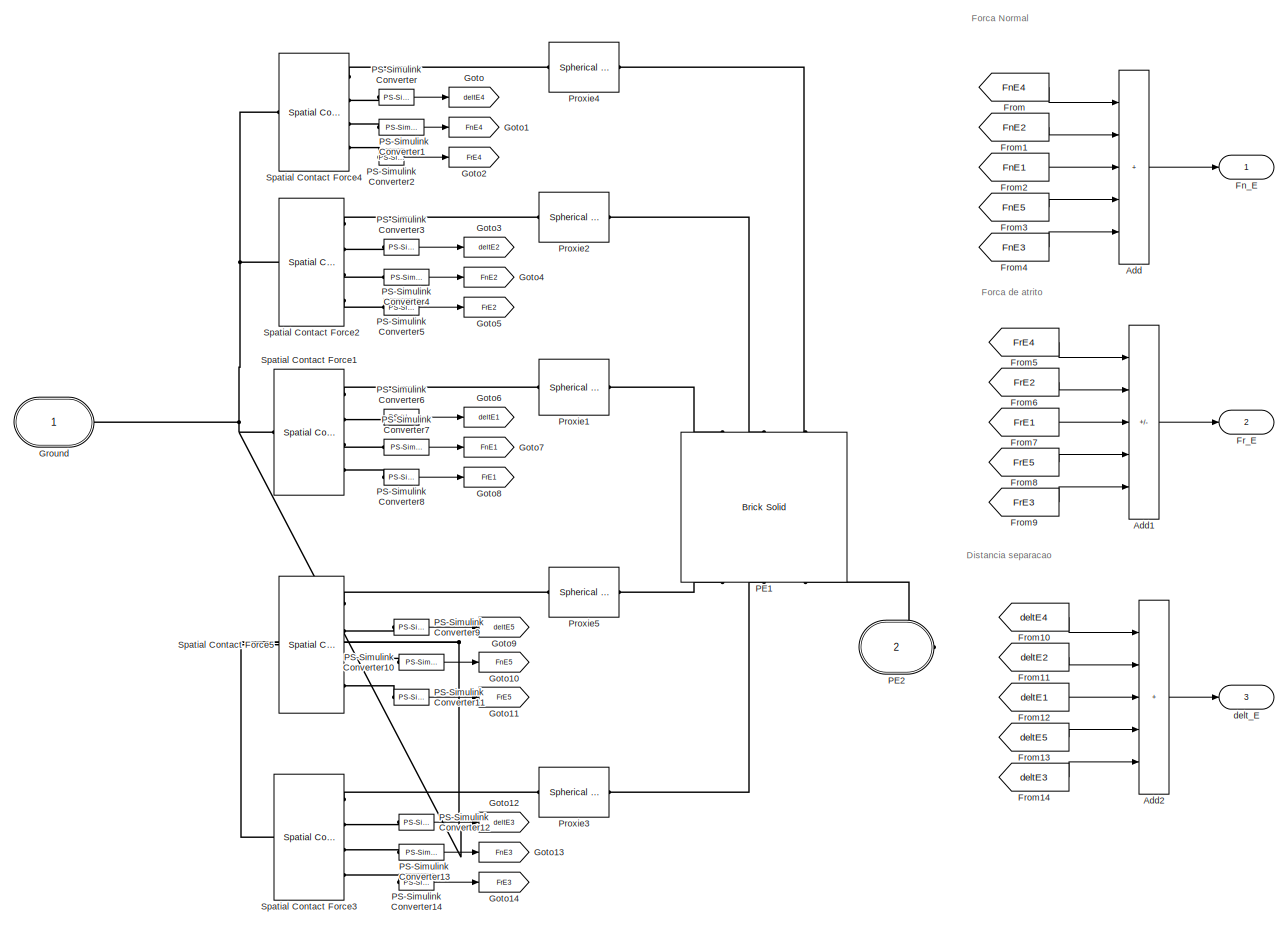
[diagram: EXOESQUELETO/PERNA ESQUERDA/Subsystem - part 1/1, most of the canvas]
BLOCK [SubSystem] EXOESQUELETO/PERNA ESQUERDA/Subsystem
  Ports = [0, 3, 0, 0, 0, 1, 1]
  RequestExecContextInheritance = off
BLOCK [Sum] EXOESQUELETO/PERNA ESQUERDA/Subsystem/Add
  IconShape = rectangular
  Inputs = +++++
  Ports = [5, 1]
BLOCK [Sum] EXOESQUELETO/PERNA ESQUERDA/Subsystem/Add1
  IconShape = rectangular
  Inputs = ++---
  Ports = [5, 1]
BLOCK [Sum] EXOESQUELETO/PERNA ESQUERDA/Subsystem/Add2
  IconShape = rectangular
  Inputs = +++++
  Ports = [5, 1]
BLOCK [Outport] EXOESQUELETO/PERNA ESQUERDA/Subsystem/Fn_E
BLOCK [Outport] EXOESQUELETO/PERNA ESQUERDA/Subsystem/Fr_E
  Port = 2
BLOCK [From] EXOESQUELETO/PERNA ESQUERDA/Subsystem/From
  GotoTag = FnE4
BLOCK [From] EXOESQUELETO/PERNA ESQUERDA/Subsystem/From1
  GotoTag = FnE2
BLOCK [From] EXOESQUELETO/PERNA ESQUERDA/Subsystem/From10
  GotoTag = deltE4
BLOCK [From] EXOESQUELETO/PERNA ESQUERDA/Subsystem/From11
  GotoTag = deltE2
BLOCK [From] EXOESQUELETO/PERNA ESQUERDA/Subsystem/From12
  GotoTag = deltE1
BLOCK [From] EXOESQUELETO/PERNA ESQUERDA/Subsystem/From13
  GotoTag = deltE5
BLOCK [From] EXOESQUELETO/PERNA ESQUERDA/Subsystem/From14
  GotoTag = deltE3
BLOCK [From] EXOESQUELETO/PERNA ESQUERDA/Subsystem/From2
  GotoTag = FnE1
BLOCK [From] EXOESQUELETO/PERNA ESQUERDA/Subsystem/From3
  GotoTag = FnE5
BLOCK [From] EXOESQUELETO/PERNA ESQUERDA/Subsystem/From4
  GotoTag = FnE3
BLOCK [From] EXOESQUELETO/PERNA ESQUERDA/Subsystem/From5
  GotoTag = FrE4
BLOCK [From] EXOESQUELETO/PERNA ESQUERDA/Subsystem/From6
  GotoTag = FrE2
BLOCK [From] EXOESQUELETO/PERNA ESQUERDA/Subsystem/From7
  GotoTag = FrE1
BLOCK [From] EXOESQUELETO/PERNA ESQUERDA/Subsystem/From8
  GotoTag = FrE5
BLOCK [From] EXOESQUELETO/PERNA ESQUERDA/Subsystem/From9
  GotoTag = FrE3
BLOCK [Goto] EXOESQUELETO/PERNA ESQUERDA/Subsystem/Goto
  GotoTag = deltE4
BLOCK [Goto] EXOESQUELETO/PERNA ESQUERDA/Subsystem/Goto1
  GotoTag = FnE4
BLOCK [Goto] EXOESQUELETO/PERNA ESQUERDA/Subsystem/Goto10
  GotoTag = FnE5
BLOCK [Goto] EXOESQUELETO/PERNA ESQUERDA/Subsystem/Goto11
  GotoTag = FrE5
BLOCK [Goto] EXOESQUELETO/PERNA ESQUERDA/Subsystem/Goto12
  GotoTag = deltE3
BLOCK [Goto] EXOESQUELETO/PERNA ESQUERDA/Subsystem/Goto13
  GotoTag = FnE3
BLOCK [Goto] EXOESQUELETO/PERNA ESQUERDA/Subsystem/Goto14
  GotoTag = FrE3
BLOCK [Goto] EXOESQUELETO/PERNA ESQUERDA/Subsystem/Goto2
  GotoTag = FrE4
BLOCK [Goto] EXOESQUELETO/PERNA ESQUERDA/Subsystem/Goto3
  GotoTag = deltE2
BLOCK [Goto] EXOESQUELETO/PERNA ESQUERDA/Subsystem/Goto4
  GotoTag = FnE2
BLOCK [Goto] EXOESQUELETO/PERNA ESQUERDA/Subsystem/Goto5
  GotoTag = FrE2
BLOCK [Goto] EXOESQUELETO/PERNA ESQUERDA/Subsystem/Goto6
  GotoTag = deltE1
BLOCK [Goto] EXOESQUELETO/PERNA ESQUERDA/Subsystem/Goto7
  GotoTag = FnE1
BLOCK [Goto] EXOESQUELETO/PERNA ESQUERDA/Subsystem/Goto8
  GotoTag = FrE1
BLOCK [Goto] EXOESQUELETO/PERNA ESQUERDA/Subsystem/Goto9
  GotoTag = deltE5
BLOCK [PMIOPort] EXOESQUELETO/PERNA ESQUERDA/Subsystem/Ground
  Side = Left
BLOCK [Reference] EXOESQUELETO/PERNA ESQUERDA/Subsystem/PE1  REF=sm_lib/Body Elements/Brick Solid
  NameLocation = right
  Ports = [0, 0, 0, 0, 0, 3, 3]
  SourceBlock = sm_lib/Body Elements/Brick Solid
  SourceProductBaseCode = MS
  SourceType = Brick Solid
BLOCK [PMIOPort] EXOESQUELETO/PERNA ESQUERDA/Subsystem/PE2
  Port = 2
  Side = Right
BLOCK [Reference] EXOESQUELETO/PERNA ESQUERDA/Subsystem/PS-Simulink Converter  REF=nesl_utility/PS-Simulink
Converter
  Ports = [0, 1, 0, 0, 0, 1]
  SourceBlock = nesl_utility/PS-Simulink\nConverter
  SourceProductBaseCode = SS
  SourceType = PS-Simulink\nConverter
BLOCK [Reference] EXOESQUELETO/PERNA ESQUERDA/Subsystem/PS-Simulink Converter1  REF=nesl_utility/PS-Simulink
Converter
  Ports = [0, 1, 0, 0, 0, 1]
  SourceBlock = nesl_utility/PS-Simulink\nConverter
  SourceProductBaseCode = SS
  SourceType = PS-Simulink\nConverter
BLOCK [Reference] EXOESQUELETO/PERNA ESQUERDA/Subsystem/PS-Simulink Converter10  REF=nesl_utility/PS-Simulink
Converter
  Ports = [0, 1, 0, 0, 0, 1]
  SourceBlock = nesl_utility/PS-Simulink\nConverter
  SourceProductBaseCode = SS
  SourceType = PS-Simulink\nConverter
BLOCK [Reference] EXOESQUELETO/PERNA ESQUERDA/Subsystem/PS-Simulink Converter11  REF=nesl_utility/PS-Simulink
Converter
  Ports = [0, 1, 0, 0, 0, 1]
  SourceBlock = nesl_utility/PS-Simulink\nConverter
  SourceProductBaseCode = SS
  SourceType = PS-Simulink\nConverter
BLOCK [Reference] EXOESQUELETO/PERNA ESQUERDA/Subsystem/PS-Simulink Converter12  REF=nesl_utility/PS-Simulink
Converter
  Ports = [0, 1, 0, 0, 0, 1]
  SourceBlock = nesl_utility/PS-Simulink\nConverter
  SourceProductBaseCode = SS
  SourceType = PS-Simulink\nConverter
BLOCK [Reference] EXOESQUELETO/PERNA ESQUERDA/Subsystem/PS-Simulink Converter13  REF=nesl_utility/PS-Simulink
Converter
  Ports = [0, 1, 0, 0, 0, 1]
  SourceBlock = nesl_utility/PS-Simulink\nConverter
  SourceProductBaseCode = SS
  SourceType = PS-Simulink\nConverter
BLOCK [Reference] EXOESQUELETO/PERNA ESQUERDA/Subsystem/PS-Simulink Converter14  REF=nesl_utility/PS-Simulink
Converter
  Ports = [0, 1, 0, 0, 0, 1]
  SourceBlock = nesl_utility/PS-Simulink\nConverter
  SourceProductBaseCode = SS
  SourceType = PS-Simulink\nConverter
BLOCK [Reference] EXOESQUELETO/PERNA ESQUERDA/Subsystem/PS-Simulink Converter2  REF=nesl_utility/PS-Simulink
Converter
  Ports = [0, 1, 0, 0, 0, 1]
  SourceBlock = nesl_utility/PS-Simulink\nConverter
  SourceProductBaseCode = SS
  SourceType = PS-Simulink\nConverter
BLOCK [Reference] EXOESQUELETO/PERNA ESQUERDA/Subsystem/PS-Simulink Converter3  REF=nesl_utility/PS-Simulink
Converter
  Ports = [0, 1, 0, 0, 0, 1]
  SourceBlock = nesl_utility/PS-Simulink\nConverter
  SourceProductBaseCode = SS
  SourceType = PS-Simulink\nConverter
BLOCK [Reference] EXOESQUELETO/PERNA ESQUERDA/Subsystem/PS-Simulink Converter4  REF=nesl_utility/PS-Simulink
Converter
  Ports = [0, 1, 0, 0, 0, 1]
  SourceBlock = nesl_utility/PS-Simulink\nConverter
  SourceProductBaseCode = SS
  SourceType = PS-Simulink\nConverter
BLOCK [Reference] EXOESQUELETO/PERNA ESQUERDA/Subsystem/PS-Simulink Converter5  REF=nesl_utility/PS-Simulink
Converter
  Ports = [0, 1, 0, 0, 0, 1]
  SourceBlock = nesl_utility/PS-Simulink\nConverter
  SourceProductBaseCode = SS
  SourceType = PS-Simulink\nConverter
BLOCK [Reference] EXOESQUELETO/PERNA ESQUERDA/Subsystem/PS-Simulink Converter6  REF=nesl_utility/PS-Simulink
Converter
  Ports = [0, 1, 0, 0, 0, 1]
  SourceBlock = nesl_utility/PS-Simulink\nConverter
  SourceProductBaseCode = SS
  SourceType = PS-Simulink\nConverter
BLOCK [Reference] EXOESQUELETO/PERNA ESQUERDA/Subsystem/PS-Simulink Converter7  REF=nesl_utility/PS-Simulink
Converter
  Ports = [0, 1, 0, 0, 0, 1]
  SourceBlock = nesl_utility/PS-Simulink\nConverter
  SourceProductBaseCode = SS
  SourceType = PS-Simulink\nConverter
BLOCK [Reference] EXOESQUELETO/PERNA ESQUERDA/Subsystem/PS-Simulink Converter8  REF=nesl_utility/PS-Simulink
Converter
  Ports = [0, 1, 0, 0, 0, 1]
  SourceBlock = nesl_utility/PS-Simulink\nConverter
  SourceProductBaseCode = SS
  SourceType = PS-Simulink\nConverter
BLOCK [Reference] EXOESQUELETO/PERNA ESQUERDA/Subsystem/PS-Simulink Converter9  REF=nesl_utility/PS-Simulink
Converter
  Ports = [0, 1, 0, 0, 0, 1]
  SourceBlock = nesl_utility/PS-Simulink\nConverter
  SourceProductBaseCode = SS
  SourceType = PS-Simulink\nConverter
BLOCK [Reference] EXOESQUELETO/PERNA ESQUERDA/Subsystem/Proxie1  REF=sm_lib/Body Elements/Spherical Solid
  Ports = [0, 0, 0, 0, 0, 1, 1]
  SourceBlock = sm_lib/Body Elements/Spherical Solid
  SourceProductBaseCode = MS
  SourceType = Spherical Solid
BLOCK [Reference] EXOESQUELETO/PERNA ESQUERDA/Subsystem/Proxie2  REF=sm_lib/Body Elements/Spherical Solid
  Ports = [0, 0, 0, 0, 0, 1, 1]
  SourceBlock = sm_lib/Body Elements/Spherical Solid
  SourceProductBaseCode = MS
  SourceType = Spherical Solid
BLOCK [Reference] EXOESQUELETO/PERNA ESQUERDA/Subsystem/Proxie3  REF=sm_lib/Body Elements/Spherical Solid
  Ports = [0, 0, 0, 0, 0, 1, 1]
  SourceBlock = sm_lib/Body Elements/Spherical Solid
  SourceProductBaseCode = MS
  SourceType = Spherical Solid
BLOCK [Reference] EXOESQUELETO/PERNA ESQUERDA/Subsystem/Proxie4  REF=sm_lib/Body Elements/Spherical Solid
  Ports = [0, 0, 0, 0, 0, 1, 1]
  SourceBlock = sm_lib/Body Elements/Spherical Solid
  SourceProductBaseCode = MS
  SourceType = Spherical Solid
BLOCK [Reference] EXOESQUELETO/PERNA ESQUERDA/Subsystem/Proxie5  REF=sm_lib/Body Elements/Spherical Solid
  Ports = [0, 0, 0, 0, 0, 1, 1]
  SourceBlock = sm_lib/Body Elements/Spherical Solid
  SourceProductBaseCode = MS
  SourceType = Spherical Solid
BLOCK [Reference] EXOESQUELETO/PERNA ESQUERDA/Subsystem/Spatial Contact Force1  REF=sm_lib/Forces and
Torques/Spatial
Contact Force
  NameLocation = top
  Ports = [0, 0, 0, 0, 0, 1, 4]
  SourceBlock = sm_lib/Forces and\nTorques/Spatial\nContact Force
  SourceProductBaseCode = MS
  SourceType = Spatial\nContact Force
BLOCK [Reference] EXOESQUELETO/PERNA ESQUERDA/Subsystem/Spatial Contact Force2  REF=sm_lib/Forces and
Torques/Spatial
Contact Force
  NameLocation = top
  Ports = [0, 0, 0, 0, 0, 1, 4]
  SourceBlock = sm_lib/Forces and\nTorques/Spatial\nContact Force
  SourceProductBaseCode = MS
  SourceType = Spatial\nContact Force
BLOCK [Reference] EXOESQUELETO/PERNA ESQUERDA/Subsystem/Spatial Contact Force3  REF=sm_lib/Forces and
Torques/Spatial
Contact Force
  NameLocation = top
  Ports = [0, 0, 0, 0, 0, 1, 4]
  SourceBlock = sm_lib/Forces and\nTorques/Spatial\nContact Force
  SourceProductBaseCode = MS
  SourceType = Spatial\nContact Force
BLOCK [Reference] EXOESQUELETO/PERNA ESQUERDA/Subsystem/Spatial Contact Force4  REF=sm_lib/Forces and
Torques/Spatial
Contact Force
  NameLocation = top
  Ports = [0, 0, 0, 0, 0, 1, 4]
  SourceBlock = sm_lib/Forces and\nTorques/Spatial\nContact Force
  SourceProductBaseCode = MS
  SourceType = Spatial\nContact Force
BLOCK [Reference] EXOESQUELETO/PERNA ESQUERDA/Subsystem/Spatial Contact Force5  REF=sm_lib/Forces and
Torques/Spatial
Contact Force
  NameLocation = top
  Ports = [0, 0, 0, 0, 0, 1, 4]
  SourceBlock = sm_lib/Forces and\nTorques/Spatial\nContact Force
  SourceProductBaseCode = MS
  SourceType = Spatial\nContact Force
BLOCK [Outport] EXOESQUELETO/PERNA ESQUERDA/Subsystem/delt_E
  Port = 3
BLOCK [Scope] EXOESQUELETO/PERNA ESQUERDA/ThetaJ_out
  Floating = off
  NameLocation = right
  NumInputPorts = 1
  Ports = [1]
  ScopeSpecificationString = Simulink.scopes.TimeScopeBlockCfg('CurrentConfiguration', extmgr.ConfigurationSet(extmgr.Configuration('Core','General UI',true),extmgr.Configuration('Core','Source UI',true),extmgr.Configuration('Sources','WiredSimulink',true,'DataLoggingVariableName','ScopeData2'),extmgr.Configuration('Visuals','Time Domain',true,'SerializedDisplays',{struct('MinYLimReal','6.89854','MaxYLimReal','66.96658','YLab...<+1447ch>
BLOCK [Scope] EXOESQUELETO/PERNA ESQUERDA/ThetaQ_out
  Floating = off
  NameLocation = right
  NumInputPorts = 1
  Ports = [1]
  ScopeSpecificationString = Simulink.scopes.TimeScopeBlockCfg('CurrentConfiguration', extmgr.ConfigurationSet(extmgr.Configuration('Core','General UI',true),extmgr.Configuration('Core','Source UI',true),extmgr.Configuration('Sources','WiredSimulink',true,'DataLoggingVariableName','ScopeData1'),extmgr.Configuration('Visuals','Time Domain',true,'SerializedDisplays',{struct('MinYLimReal','-14.70053','MaxYLimReal','32.97971','YL...<+1435ch>
BLOCK [Scope] EXOESQUELETO/PERNA ESQUERDA/ThetaT_out
  Floating = off
  NameLocation = left
  NumInputPorts = 1
  Ports = [1]
  ScopeSpecificationString = Simulink.scopes.TimeScopeBlockCfg('CurrentConfiguration', extmgr.ConfigurationSet(extmgr.Configuration('Core','General UI',true),extmgr.Configuration('Core','Source UI',true),extmgr.Configuration('Sources','WiredSimulink',true,'DataLoggingVariableName','ScopeData3'),extmgr.Configuration('Visuals','Time Domain',true,'SerializedDisplays',{struct('MinYLimReal','-8.41264','MaxYLimReal','22.40951','YLa...<+1423ch>
BLOCK [Outport] EXOESQUELETO/PERNA ESQUERDA/Torques_JuntasE 
  VectorParamsAs1DForOutWhenUnconnected = off
BLOCK [Outport] EXOESQUELETO/PERNA ESQUERDA/pos_peE
  Port = 3
BLOCK [Scope] EXOESQUELETO/PERNA ESQUERDA/torqueJ_E
  Floating = off
  NameLocation = top
  NumInputPorts = 1
  Ports = [1]
  ScopeSpecificationString = Simulink.scopes.TimeScopeBlockCfg('CurrentConfiguration', extmgr.ConfigurationSet(extmgr.Configuration('Core','General UI',true),extmgr.Configuration('Core','Source UI',true),extmgr.Configuration('Sources','WiredSimulink',true,'DataLoggingVariableName','ScopeData2'),extmgr.Configuration('Visuals','Time Domain',true,'SerializedDisplays',{struct('MinYLimReal','-428.96859','MaxYLimReal','92.0632','YL...<+1439ch>
BLOCK [Scope] EXOESQUELETO/PERNA ESQUERDA/torqueQ_E
  Floating = off
  NameLocation = top
  NumInputPorts = 1
  Ports = [1]
  ScopeSpecificationString = Simulink.scopes.TimeScopeBlockCfg('CurrentConfiguration', extmgr.ConfigurationSet(extmgr.Configuration('Core','General UI',true),extmgr.Configuration('Core','Source UI',true),extmgr.Configuration('Sources','WiredSimulink',true,'DataLoggingVariableName','ScopeData1'),extmgr.Configuration('Visuals','Time Domain',true,'SerializedDisplays',{struct('MinYLimReal','-141.95804','MaxYLimReal','482.76896','...<+1459ch>
BLOCK [Scope] EXOESQUELETO/PERNA ESQUERDA/torqueT_E
  Floating = off
  NameLocation = top
  NumInputPorts = 1
  Ports = [1]
  ScopeSpecificationString = Simulink.scopes.TimeScopeBlockCfg('CurrentConfiguration', extmgr.ConfigurationSet(extmgr.Configuration('Core','General UI',true),extmgr.Configuration('Core','Source UI',true),extmgr.Configuration('Sources','WiredSimulink',true,'DataLoggingVariableName','ScopeData1'),extmgr.Configuration('Visuals','Time Domain',true,'SerializedDisplays',{struct('MinYLimReal','-61.64271','MaxYLimReal','25.34469','YL...<+1452ch>
BLOCK [Outport] EXOESQUELETO/PERNA ESQUERDA/vel_peE
  Port = 4
BLOCK [Reference] EXOESQUELETO/Plano Y0   REF=sm_lib/Frames and
Transforms/Rigid
Transform
  Ports = [0, 0, 0, 0, 0, 1, 1]
  SourceBlock = sm_lib/Frames and\nTransforms/Rigid\nTransform
  SourceProductBaseCode = MS
  SourceType = Rigid\nTransform
BLOCK [Reference] EXOESQUELETO/Plano Y1  REF=sm_lib/Frames and
Transforms/Rigid
Transform
  Ports = [0, 0, 0, 0, 0, 1, 1]
  SourceBlock = sm_lib/Frames and\nTransforms/Rigid\nTransform
  SourceProductBaseCode = MS
  SourceType = Rigid\nTransform
BLOCK [Reference] EXOESQUELETO/Ref_CoM_HAT  REF=sm_lib/Joints/Cartesian
Joint
  Ports = [0, 0, 0, 0, 0, 1, 1]
  SourceBlock = sm_lib/Joints/Cartesian\nJoint
  SourceProductBaseCode = MS
  SourceType = Cartesian\nJoint
BLOCK [Reference] EXOESQUELETO/Reference Frame  REF=sm_lib/Frames and
Transforms/Reference
Frame
  NameLocation = left
  Ports = [0, 0, 0, 0, 0, 0, 1]
  SourceBlock = sm_lib/Frames and\nTransforms/Reference\nFrame
  SourceProductBaseCode = MS
  SourceType = Reference\nFrame
BLOCK [Reference] EXOESQUELETO/SOLO   REF=sm_lib/Body Elements/Brick Solid
  NameLocation = left
  Ports = [0, 0, 0, 0, 0, 1, 1]
  SourceBlock = sm_lib/Body Elements/Brick Solid
  SourceProductBaseCode = MS
  SourceType = Brick Solid
BLOCK [SubSystem] EXOESQUELETO/Sensor_HAT
  NameLocation = top
  PortSchema = {"entries":[{"content":{"sides":[{"content":{"connectorIds":[]},"type":"ConnectorPlacement.EquallySpacedRectSide","uuid":"769ee7b6-bdc6-49d9-8637-a9c81876e313"},{"content":{"connectorIds":["Out1","Out2","Out3"],"side":"RIGHT"},"type":"ConnectorPlacement.EquallySpacedRectSide","uuid":"1964de58-24b6-444a-bc2a-64d941588411"},{"content":{"connectorIds":["LConn1"],"side":"TOP"},"type":"ConnectorPlaceme...<+411ch>
  Ports = [0, 3, 0, 0, 0, 1, 1]
  RequestExecContextInheritance = off
BLOCK [PMIOPort] EXOESQUELETO/Sensor_HAT/B
  Port = 2
  Side = Right
BLOCK [BusCreator] EXOESQUELETO/Sensor_HAT/Bus Creator
  DisplayOption = bar
  InheritFromInputs = on
  Inputs = 3
  Ports = [3, 1]
BLOCK [BusCreator] EXOESQUELETO/Sensor_HAT/Bus Creator1
  DisplayOption = bar
  InheritFromInputs = on
  Inputs = 3
  Ports = [3, 1]
BLOCK [BusCreator] EXOESQUELETO/Sensor_HAT/Bus Creator2
  DisplayOption = bar
  InheritFromInputs = on
  Inputs = 3
  Ports = [3, 1]
BLOCK [Reference] EXOESQUELETO/Sensor_HAT/Compare To Constant  REF=simulink/Logic and Bit
Operations/Compare
To Constant
  Ports = [1, 1]
  SourceBlock = simulink/Logic and Bit\nOperations/Compare\nTo Constant
  SourceProductBaseCode = SL
  SourceType = Compare To Constant
BLOCK [PMIOPort] EXOESQUELETO/Sensor_HAT/F
  Side = Left
BLOCK [From] EXOESQUELETO/Sensor_HAT/From
  GotoTag = CoG_y
BLOCK [Goto] EXOESQUELETO/Sensor_HAT/Goto
  GotoTag = CoG_y
  NameLocation = top
BLOCK [Reference] EXOESQUELETO/Sensor_HAT/PS-Simulink Converter  REF=nesl_utility/PS-Simulink
Converter
  Ports = [0, 1, 0, 0, 0, 1]
  SourceBlock = nesl_utility/PS-Simulink\nConverter
  SourceProductBaseCode = SS
  SourceType = PS-Simulink\nConverter
BLOCK [Reference] EXOESQUELETO/Sensor_HAT/PS-Simulink Converter1  REF=nesl_utility/PS-Simulink
Converter
  Ports = [0, 1, 0, 0, 0, 1]
  SourceBlock = nesl_utility/PS-Simulink\nConverter
  SourceProductBaseCode = SS
  SourceType = PS-Simulink\nConverter
BLOCK [Reference] EXOESQUELETO/Sensor_HAT/PS-Simulink Converter2  REF=nesl_utility/PS-Simulink
Converter
  Ports = [0, 1, 0, 0, 0, 1]
  SourceBlock = nesl_utility/PS-Simulink\nConverter
  SourceProductBaseCode = SS
  SourceType = PS-Simulink\nConverter
BLOCK [Reference] EXOESQUELETO/Sensor_HAT/PS-Simulink Converter3  REF=nesl_utility/PS-Simulink
Converter
  Ports = [0, 1, 0, 0, 0, 1]
  SourceBlock = nesl_utility/PS-Simulink\nConverter
  SourceProductBaseCode = SS
  SourceType = PS-Simulink\nConverter
BLOCK [Reference] EXOESQUELETO/Sensor_HAT/PS-Simulink Converter4  REF=nesl_utility/PS-Simulink
Converter
  Ports = [0, 1, 0, 0, 0, 1]
  SourceBlock = nesl_utility/PS-Simulink\nConverter
  SourceProductBaseCode = SS
  SourceType = PS-Simulink\nConverter
BLOCK [Reference] EXOESQUELETO/Sensor_HAT/PS-Simulink Converter5  REF=nesl_utility/PS-Simulink
Converter
  Ports = [0, 1, 0, 0, 0, 1]
  SourceBlock = nesl_utility/PS-Simulink\nConverter
  SourceProductBaseCode = SS
  SourceType = PS-Simulink\nConverter
BLOCK [Reference] EXOESQUELETO/Sensor_HAT/PS-Simulink Converter6  REF=nesl_utility/PS-Simulink
Converter
  Ports = [0, 1, 0, 0, 0, 1]
  SourceBlock = nesl_utility/PS-Simulink\nConverter
  SourceProductBaseCode = SS
  SourceType = PS-Simulink\nConverter
BLOCK [Reference] EXOESQUELETO/Sensor_HAT/PS-Simulink Converter7  REF=nesl_utility/PS-Simulink
Converter
  Ports = [0, 1, 0, 0, 0, 1]
  SourceBlock = nesl_utility/PS-Simulink\nConverter
  SourceProductBaseCode = SS
  SourceType = PS-Simulink\nConverter
BLOCK [Reference] EXOESQUELETO/Sensor_HAT/PS-Simulink Converter8  REF=nesl_utility/PS-Simulink
Converter
  Ports = [0, 1, 0, 0, 0, 1]
  SourceBlock = nesl_utility/PS-Simulink\nConverter
  SourceProductBaseCode = SS
  SourceType = PS-Simulink\nConverter
BLOCK [Reference] EXOESQUELETO/Sensor_HAT/Posicao CoG  REF=sm_lib/Frames and
Transforms/Transform
Sensor
  NameLocation = left
  Ports = [0, 0, 0, 0, 0, 1, 10]
  SourceBlock = sm_lib/Frames and\nTransforms/Transform\nSensor
  SourceProductBaseCode = MS
  SourceType = Transform\nSensor
BLOCK [Stop] EXOESQUELETO/Sensor_HAT/Stop Simulation
BLOCK [Outport] EXOESQUELETO/Sensor_HAT/acel_CoG
  Port = 3
BLOCK [Outport] EXOESQUELETO/Sensor_HAT/pos_CoG
BLOCK [Outport] EXOESQUELETO/Sensor_HAT/vel_CoG
  Port = 2
BLOCK [Reference] EXOESQUELETO/Solver Configuration  REF=nesl_utility/Solver
Configuration
  Ports = [0, 0, 0, 0, 0, 0, 1]
  SourceBlock = nesl_utility/Solver\nConfiguration
  SourceProductBaseCode = SS
  SourceType = Solver\nConfiguration
BLOCK [ToWorkspace] EXOESQUELETO/To Workspace
  FixptAsFi = on
  MaxDataPoints = inf
  Ports = [1]
  SampleTime = -1
  SaveFormat = Timeseries
  VariableName = torques_V1
BLOCK [ToWorkspace] EXOESQUELETO/To Workspace1
  FixptAsFi = on
  MaxDataPoints = inf
  Ports = [1]
  SampleTime = -1
  SaveFormat = Timeseries
  VariableName = torques_V2
BLOCK [ToWorkspace] EXOESQUELETO/To Workspace2
  FixptAsFi = on
  MaxDataPoints = inf
  Ports = [1]
  SampleTime = -1
  SaveFormat = Timeseries
  VariableName = torques_V3
BLOCK [ToWorkspace] EXOESQUELETO/To Workspace3
  FixptAsFi = on
  MaxDataPoints = inf
  Ports = [1]
  SampleTime = -1
  SaveFormat = Timeseries
  VariableName = Fcont_D
BLOCK [ToWorkspace] EXOESQUELETO/To Workspace9
  FixptAsFi = on
  MaxDataPoints = inf
  Ports = [1]
  SampleTime = -1
  SaveFormat = Timeseries
  VariableName = torques_V4
BLOCK [ToWorkspace] EXOESQUELETO/Torque_Direita
  FixptAsFi = on
  MaxDataPoints = inf
  Ports = [1]
  SampleTime = -1
  SaveFormat = Timeseries
  VariableName = torD
BLOCK [ToWorkspace] EXOESQUELETO/Torques_Esquerda
  FixptAsFi = on
  MaxDataPoints = inf
  Ports = [1]
  SampleTime = -1
  SaveFormat = Timeseries
  VariableName = torE
BLOCK [Reference] EXOESQUELETO/World Frame1  REF=sm_lib/Frames and
Transforms/World Frame
  Ports = [0, 0, 0, 0, 0, 0, 1]
  SourceBlock = sm_lib/Frames and\nTransforms/World Frame
  SourceProductBaseCode = MS
  SourceType = World Frame
BLOCK [ToWorkspace] EXOESQUELETO/acel_CoG
  FixptAsFi = on
  MaxDataPoints = inf
  Ports = [1]
  SampleTime = -1
  SaveFormat = Timeseries
  VariableName = acel_CoG
BLOCK [ToWorkspace] EXOESQUELETO/pos_CoG
  FixptAsFi = on
  MaxDataPoints = inf
  Ports = [1]
  SampleTime = -1
  SaveFormat = Timeseries
  VariableName = pos_CoG
BLOCK [ToWorkspace] EXOESQUELETO/posicao_pe_D
  FixptAsFi = on
  MaxDataPoints = inf
  Ports = [1]
  SampleTime = -1
  SaveFormat = Timeseries
  VariableName = pos_peD
BLOCK [ToWorkspace] EXOESQUELETO/posicao_pe_E
  FixptAsFi = on
  MaxDataPoints = inf
  Ports = [1]
  SampleTime = -1
  SaveFormat = Timeseries
  VariableName = pos_peE
BLOCK [Outport] EXOESQUELETO/pospe_D
  Port = 2
BLOCK [Outport] EXOESQUELETO/pospe_E
  Port = 4
BLOCK [SubSystem] EXOESQUELETO/selecionaTorques
  ErrorFcn = Stateflow.Translate.translate
  PermitHierarchicalResolution = ExplicitOnly
  Ports = [3, 4]
  RequestExecContextInheritance = off
  SFBlockType = MATLAB Function
  TreatAsAtomicUnit = on
BLOCK [Demux] EXOESQUELETO/selecionaTorques/ Demux 
  Outputs = 1
  Ports = [1, 1]
BLOCK [S-Function] EXOESQUELETO/selecionaTorques/ SFunction 
  EnableBusSupport = on
  FunctionName = sf_sfun
  PortCounts = [3 5]
  Ports = [3, 5]
  SFcnIsStateOwnerBlock = off
  SFunctionDeploymentMode = off
  Tag = Stateflow S-Function 2
BLOCK [Terminator] EXOESQUELETO/selecionaTorques/ Terminator 
BLOCK [Outport] EXOESQUELETO/selecionaTorques/torqueV1
  VectorParamsAs1DForOutWhenUnconnected = off
BLOCK [Outport] EXOESQUELETO/selecionaTorques/torqueV2
  Port = 2
  VectorParamsAs1DForOutWhenUnconnected = off
BLOCK [Outport] EXOESQUELETO/selecionaTorques/torqueV3
  Port = 3
  VectorParamsAs1DForOutWhenUnconnected = off
BLOCK [Outport] EXOESQUELETO/selecionaTorques/torqueV4
  Port = 4
  VectorParamsAs1DForOutWhenUnconnected = off
BLOCK [Inport] EXOESQUELETO/selecionaTorques/torque_dir
  Port = 2
BLOCK [Inport] EXOESQUELETO/selecionaTorques/torque_esq
  Port = 3
BLOCK [Inport] EXOESQUELETO/selecionaTorques/velocidade
BLOCK [ToWorkspace] EXOESQUELETO/vel_CoG
  FixptAsFi = on
  MaxDataPoints = inf
  Ports = [1]
  SampleTime = -1
  SaveFormat = Timeseries
  VariableName = vel_CoG
BLOCK [ToWorkspace] EXOESQUELETO/velocidade_peD
  FixptAsFi = on
  MaxDataPoints = inf
  Ports = [1]
  SampleTime = -1
  SaveFormat = Timeseries
  VariableName = vel_peD
BLOCK [ToWorkspace] EXOESQUELETO/velocidade_peE
  FixptAsFi = on
  MaxDataPoints = inf
  Ports = [1]
  SampleTime = -1
  SaveFormat = Timeseries
  VariableName = vel_peE
BLOCK [Scope] Scope
  Floating = off
  NumInputPorts = 3
  Ports = [3]
  ScopeSpecificationString = Simulink.scopes.TimeScopeBlockCfg('CurrentConfiguration', extmgr.ConfigurationSet(extmgr.Configuration('Core','General UI',true),extmgr.Configuration('Core','Source UI',true),extmgr.Configuration('Sources','WiredSimulink',true,'DataLoggingVariableName','ScopeData1'),extmgr.Configuration('Visuals','Time Domain',true,'SerializedDisplays',{struct('MinYLimReal','-148.62375','MaxYLimReal','866.6658','Y...<+1441ch>
BLOCK [Scope] Scope1
  Floating = off
  NumInputPorts = 3
  Ports = [3]
  ScopeSpecificationString = Simulink.scopes.TimeScopeBlockCfg('CurrentConfiguration', extmgr.ConfigurationSet(extmgr.Configuration('Core','General UI',true),extmgr.Configuration('Core','Source UI',true),extmgr.Configuration('Sources','WiredSimulink',true,'DataLoggingVariableName','ScopeData2'),extmgr.Configuration('Visuals','Time Domain',true,'SerializedDisplays',{struct('MinYLimReal','-0.13901','MaxYLimReal','1.6173','YLabe...<+1367ch>
BLOCK [Scope] Scope2
  Floating = off
  NumInputPorts = 3
  Ports = [3]
  ScopeSpecificationString = Simulink.scopes.TimeScopeBlockCfg('CurrentConfiguration', extmgr.ConfigurationSet(extmgr.Configuration('Core','General UI',true),extmgr.Configuration('Core','Source UI',true),extmgr.Configuration('Sources','WiredSimulink',true,'DataLoggingVariableName','ScopeData3'),extmgr.Configuration('Visuals','Time Domain',true,'SerializedDisplays',{struct('MinYLimReal','-1975.23902','MaxYLimReal','2962.85852'...<+1480ch>
BLOCK [Scope] Scope3
  Floating = off
  NumInputPorts = 3
  Ports = [3]
  ScopeSpecificationString = Simulink.scopes.TimeScopeBlockCfg('CurrentConfiguration', extmgr.ConfigurationSet(extmgr.Configuration('Core','General UI',true),extmgr.Configuration('Core','Source UI',true),extmgr.Configuration('Sources','WiredSimulink',true,'DataLoggingVariableName','ScopeData4'),extmgr.Configuration('Visuals','Time Domain',true,'SerializedDisplays',{struct('MinYLimReal','-0.61648','MaxYLimReal','0.65852','YLab...<+1371ch>
ANNOTATION EXOESQUELETO/PERNA DIREITA/Pe_Direito_Contato: Distancia separacao
ANNOTATION EXOESQUELETO/PERNA DIREITA/Pe_Direito_Contato: Forca de atrito
ANNOTATION EXOESQUELETO/PERNA DIREITA/Pe_Direito_Contato: Forca normal
ANNOTATION EXOESQUELETO/PERNA ESQUERDA/Subsystem: Forca Normal
ANNOTATION EXOESQUELETO/PERNA ESQUERDA/Subsystem: Distancia separacao
ANNOTATION EXOESQUELETO/PERNA ESQUERDA/Subsystem: Forca de atrito
LINE Angulos_Direita:1 -> Degrees to Radians:1
LINE Angulos_Esquerda:1 -> Degrees to Radians1:1
LINE Degrees to Radians1:1 -> EXOESQUELETO:2
LINE Degrees to Radians:1 -> EXOESQUELETO:1
LINE Demux1:1 -> Scope1:1
LINE Demux1:2 -> Scope1:2
LINE Demux1:3 -> Scope1:3
LINE Demux2:1 -> Scope2:1
LINE Demux2:2 -> Scope2:2
LINE Demux2:3 -> Scope2:3
LINE Demux3:1 -> Scope3:1
LINE Demux3:2 -> Scope3:2
LINE Demux3:3 -> Scope3:3
LINE Demux:1 -> Scope:1
LINE Demux:2 -> Scope:2
LINE Demux:3 -> Scope:3
LINE EXOESQUELETO/Ang_E:1 -> EXOESQUELETO/PERNA ESQUERDA:1
LINE EXOESQUELETO/Ang_R:1 -> EXOESQUELETO/PERNA DIREITA:1
LINE EXOESQUELETO/Constant:1 -> EXOESQUELETO/selecionaTorques:1
LINE EXOESQUELETO/PERNA DIREITA/Ang_R:1 -> EXOESQUELETO/PERNA DIREITA/Demux:1
LINE EXOESQUELETO/PERNA DIREITA/Bus Creator:1 -> EXOESQUELETO/PERNA DIREITA/Fcont_D:1
LINE EXOESQUELETO/PERNA DIREITA/Demux:1 -> EXOESQUELETO/PERNA DIREITA/Simulink-PS Converter Theta_Q:1
LINE EXOESQUELETO/PERNA DIREITA/Demux:2 -> EXOESQUELETO/PERNA DIREITA/Gain:1
LINE EXOESQUELETO/PERNA DIREITA/Demux:3 -> EXOESQUELETO/PERNA DIREITA/Simulink-PS Converter Theta_T:1
LINE EXOESQUELETO/PERNA DIREITA/From1:1 -> EXOESQUELETO/PERNA DIREITA/Mux:2
LINE EXOESQUELETO/PERNA DIREITA/From2:1 -> EXOESQUELETO/PERNA DIREITA/Mux:3
LINE EXOESQUELETO/PERNA DIREITA/From:1 -> EXOESQUELETO/PERNA DIREITA/Mux:1
NET EXOESQUELETO/PERNA DIREITA/Gain1:1 -> EXOESQUELETO/PERNA DIREITA/Goto1:1, EXOESQUELETO/PERNA DIREITA/Scope2:1
NET EXOESQUELETO/PERNA DIREITA/Gain2:1 -> EXOESQUELETO/PERNA DIREITA/ThetaQ_out:1, EXOESQUELETO/PERNA DIREITA/To Workspace:1
NET EXOESQUELETO/PERNA DIREITA/Gain3:1 -> EXOESQUELETO/PERNA DIREITA/ThetaJ_out:1, EXOESQUELETO/PERNA DIREITA/To Workspace1:1
NET EXOESQUELETO/PERNA DIREITA/Gain4:1 -> EXOESQUELETO/PERNA DIREITA/ThetaT_out:1, EXOESQUELETO/PERNA DIREITA/To Workspace2:1
LINE EXOESQUELETO/PERNA DIREITA/Gain:1 -> EXOESQUELETO/PERNA DIREITA/Simulink-PS Converter Theta_J:1
LINE EXOESQUELETO/PERNA DIREITA/Mux:1 -> EXOESQUELETO/PERNA DIREITA/Torques_JuntasD :1
LINE EXOESQUELETO/PERNA DIREITA/PS-Simulink Converter1:1 -> EXOESQUELETO/PERNA DIREITA/Gain1:1
NET EXOESQUELETO/PERNA DIREITA/PS-Simulink Converter2:1 -> EXOESQUELETO/PERNA DIREITA/Goto2:1, EXOESQUELETO/PERNA DIREITA/TorqueT_D:1
LINE EXOESQUELETO/PERNA DIREITA/PS-Simulink Converter3:1 -> EXOESQUELETO/PERNA DIREITA/Gain2:1
LINE EXOESQUELETO/PERNA DIREITA/PS-Simulink Converter4:1 -> EXOESQUELETO/PERNA DIREITA/Gain3:1
LINE EXOESQUELETO/PERNA DIREITA/PS-Simulink Converter5:1 -> EXOESQUELETO/PERNA DIREITA/Gain4:1
NET EXOESQUELETO/PERNA DIREITA/PS-Simulink Converter:1 -> EXOESQUELETO/PERNA DIREITA/Goto:1, EXOESQUELETO/PERNA DIREITA/Scope1:1
LINE EXOESQUELETO/PERNA DIREITA/Pe_Direito_Contato/FnD:1 -> EXOESQUELETO/PERNA DIREITA/Pe_Direito_Contato/Fn_D:1
LINE EXOESQUELETO/PERNA DIREITA/Pe_Direito_Contato/FrD:1 -> EXOESQUELETO/PERNA DIREITA/Pe_Direito_Contato/Fr_D:1
LINE EXOESQUELETO/PERNA DIREITA/Pe_Direito_Contato/From10:1 -> EXOESQUELETO/PERNA DIREITA/Pe_Direito_Contato/deltaD:1
LINE EXOESQUELETO/PERNA DIREITA/Pe_Direito_Contato/From11:1 -> EXOESQUELETO/PERNA DIREITA/Pe_Direito_Contato/deltaD:2
LINE EXOESQUELETO/PERNA DIREITA/Pe_Direito_Contato/From12:1 -> EXOESQUELETO/PERNA DIREITA/Pe_Direito_Contato/deltaD:3
LINE EXOESQUELETO/PERNA DIREITA/Pe_Direito_Contato/From13:1 -> EXOESQUELETO/PERNA DIREITA/Pe_Direito_Contato/deltaD:4
LINE EXOESQUELETO/PERNA DIREITA/Pe_Direito_Contato/From14:1 -> EXOESQUELETO/PERNA DIREITA/Pe_Direito_Contato/deltaD:5
LINE EXOESQUELETO/PERNA DIREITA/Pe_Direito_Contato/From1:1 -> EXOESQUELETO/PERNA DIREITA/Pe_Direito_Contato/FnD:2
LINE EXOESQUELETO/PERNA DIREITA/Pe_Direito_Contato/From2:1 -> EXOESQUELETO/PERNA DIREITA/Pe_Direito_Contato/FnD:3
LINE EXOESQUELETO/PERNA DIREITA/Pe_Direito_Contato/From3:1 -> EXOESQUELETO/PERNA DIREITA/Pe_Direito_Contato/FnD:4
LINE EXOESQUELETO/PERNA DIREITA/Pe_Direito_Contato/From4:1 -> EXOESQUELETO/PERNA DIREITA/Pe_Direito_Contato/FnD:5
LINE EXOESQUELETO/PERNA DIREITA/Pe_Direito_Contato/From5:1 -> EXOESQUELETO/PERNA DIREITA/Pe_Direito_Contato/FrD:1
LINE EXOESQUELETO/PERNA DIREITA/Pe_Direito_Contato/From6:1 -> EXOESQUELETO/PERNA DIREITA/Pe_Direito_Contato/FrD:2
LINE EXOESQUELETO/PERNA DIREITA/Pe_Direito_Contato/From7:1 -> EXOESQUELETO/PERNA DIREITA/Pe_Direito_Contato/FrD:3
LINE EXOESQUELETO/PERNA DIREITA/Pe_Direito_Contato/From8:1 -> EXOESQUELETO/PERNA DIREITA/Pe_Direito_Contato/FrD:4
LINE EXOESQUELETO/PERNA DIREITA/Pe_Direito_Contato/From9:1 -> EXOESQUELETO/PERNA DIREITA/Pe_Direito_Contato/FrD:5
LINE EXOESQUELETO/PERNA DIREITA/Pe_Direito_Contato/From:1 -> EXOESQUELETO/PERNA DIREITA/Pe_Direito_Contato/FnD:1
LINE EXOESQUELETO/PERNA DIREITA/Pe_Direito_Contato/PS-Simulink Converter10:1 -> EXOESQUELETO/PERNA DIREITA/Pe_Direito_Contato/Goto7:1
LINE EXOESQUELETO/PERNA DIREITA/Pe_Direito_Contato/PS-Simulink Converter11:1 -> EXOESQUELETO/PERNA DIREITA/Pe_Direito_Contato/Goto8:1
LINE EXOESQUELETO/PERNA DIREITA/Pe_Direito_Contato/PS-Simulink Converter12:1 -> EXOESQUELETO/PERNA DIREITA/Pe_Direito_Contato/Goto10:1
LINE EXOESQUELETO/PERNA DIREITA/Pe_Direito_Contato/PS-Simulink Converter13:1 -> EXOESQUELETO/PERNA DIREITA/Pe_Direito_Contato/Goto11:1
LINE EXOESQUELETO/PERNA DIREITA/Pe_Direito_Contato/PS-Simulink Converter14:1 -> EXOESQUELETO/PERNA DIREITA/Pe_Direito_Contato/Goto9:1
LINE EXOESQUELETO/PERNA DIREITA/Pe_Direito_Contato/PS-Simulink Converter15:1 -> EXOESQUELETO/PERNA DIREITA/Pe_Direito_Contato/Goto13:1
LINE EXOESQUELETO/PERNA DIREITA/Pe_Direito_Contato/PS-Simulink Converter16:1 -> EXOESQUELETO/PERNA DIREITA/Pe_Direito_Contato/Goto14:1
LINE EXOESQUELETO/PERNA DIREITA/Pe_Direito_Contato/PS-Simulink Converter17:1 -> EXOESQUELETO/PERNA DIREITA/Pe_Direito_Contato/Goto12:1
LINE EXOESQUELETO/PERNA DIREITA/Pe_Direito_Contato/PS-Simulink Converter18:1 -> EXOESQUELETO/PERNA DIREITA/Pe_Direito_Contato/Goto16:1
LINE EXOESQUELETO/PERNA DIREITA/Pe_Direito_Contato/PS-Simulink Converter19:1 -> EXOESQUELETO/PERNA DIREITA/Pe_Direito_Contato/Goto17:1
LINE EXOESQUELETO/PERNA DIREITA/Pe_Direito_Contato/PS-Simulink Converter20:1 -> EXOESQUELETO/PERNA DIREITA/Pe_Direito_Contato/Goto15:1
LINE EXOESQUELETO/PERNA DIREITA/Pe_Direito_Contato/PS-Simulink Converter6:1 -> EXOESQUELETO/PERNA DIREITA/Pe_Direito_Contato/Goto3:1
LINE EXOESQUELETO/PERNA DIREITA/Pe_Direito_Contato/PS-Simulink Converter7:1 -> EXOESQUELETO/PERNA DIREITA/Pe_Direito_Contato/Goto4:1
LINE EXOESQUELETO/PERNA DIREITA/Pe_Direito_Contato/PS-Simulink Converter8:1 -> EXOESQUELETO/PERNA DIREITA/Pe_Direito_Contato/Goto5:1
LINE EXOESQUELETO/PERNA DIREITA/Pe_Direito_Contato/PS-Simulink Converter9:1 -> EXOESQUELETO/PERNA DIREITA/Pe_Direito_Contato/Goto6:1
LINE EXOESQUELETO/PERNA DIREITA/Pe_Direito_Contato/deltaD:1 -> EXOESQUELETO/PERNA DIREITA/Pe_Direito_Contato/delt_D:1
NET EXOESQUELETO/PERNA DIREITA/Pe_Direito_Contato:1 -> EXOESQUELETO/PERNA DIREITA/Bus Creator:1, EXOESQUELETO/PERNA DIREITA/Scope3:1
NET EXOESQUELETO/PERNA DIREITA/Pe_Direito_Contato:2 -> EXOESQUELETO/PERNA DIREITA/Bus Creator:2, EXOESQUELETO/PERNA DIREITA/Scope4:1
NET EXOESQUELETO/PERNA DIREITA/Pe_Direito_Contato:3 -> EXOESQUELETO/PERNA DIREITA/Bus Creator:3, EXOESQUELETO/PERNA DIREITA/Scope5:1
LINE EXOESQUELETO/PERNA DIREITA/posicao_pe_D/Bus Creator1:1 -> EXOESQUELETO/PERNA DIREITA/posicao_pe_D/pos_peD:1
LINE EXOESQUELETO/PERNA DIREITA/posicao_pe_D/Bus Creator:1 -> EXOESQUELETO/PERNA DIREITA/posicao_pe_D/vel_peD:1
LINE EXOESQUELETO/PERNA DIREITA/posicao_pe_D/PS-Simulink Converter1:1 -> EXOESQUELETO/PERNA DIREITA/posicao_pe_D/Bus Creator:1
LINE EXOESQUELETO/PERNA DIREITA/posicao_pe_D/PS-Simulink Converter2:1 -> EXOESQUELETO/PERNA DIREITA/posicao_pe_D/Bus Creator:2
LINE EXOESQUELETO/PERNA DIREITA/posicao_pe_D/PS-Simulink Converter3:1 -> EXOESQUELETO/PERNA DIREITA/posicao_pe_D/Bus Creator:3
LINE EXOESQUELETO/PERNA DIREITA/posicao_pe_D/PS-Simulink Converter6:1 -> EXOESQUELETO/PERNA DIREITA/posicao_pe_D/Bus Creator1:1
LINE EXOESQUELETO/PERNA DIREITA/posicao_pe_D/PS-Simulink Converter7:1 -> EXOESQUELETO/PERNA DIREITA/posicao_pe_D/Bus Creator1:2
LINE EXOESQUELETO/PERNA DIREITA/posicao_pe_D/PS-Simulink Converter8:1 -> EXOESQUELETO/PERNA DIREITA/posicao_pe_D/Bus Creator1:3
LINE EXOESQUELETO/PERNA DIREITA/posicao_pe_D:1 -> EXOESQUELETO/PERNA DIREITA/pos_peD:1
LINE EXOESQUELETO/PERNA DIREITA/posicao_pe_D:2 -> EXOESQUELETO/PERNA DIREITA/vel_peD:1
NET EXOESQUELETO/PERNA DIREITA:1 -> EXOESQUELETO/Torque_Direita:1, EXOESQUELETO/selecionaTorques:2
NET EXOESQUELETO/PERNA DIREITA:2 -> EXOESQUELETO/FcD:1, EXOESQUELETO/To Workspace3:1
NET EXOESQUELETO/PERNA DIREITA:3 -> EXOESQUELETO/posicao_pe_D:1, EXOESQUELETO/pospe_D:1
LINE EXOESQUELETO/PERNA DIREITA:4 -> EXOESQUELETO/velocidade_peD:1
LINE EXOESQUELETO/PERNA ESQUERDA/Ang_E:1 -> EXOESQUELETO/PERNA ESQUERDA/Demux1:1
LINE EXOESQUELETO/PERNA ESQUERDA/Bus Creator:1 -> EXOESQUELETO/PERNA ESQUERDA/Fcont_E:1
LINE EXOESQUELETO/PERNA ESQUERDA/Demux1:1 -> EXOESQUELETO/PERNA ESQUERDA/Simulink-PS Converter Theta_Q1:1
LINE EXOESQUELETO/PERNA ESQUERDA/Demux1:2 -> EXOESQUELETO/PERNA ESQUERDA/Gain1:1
LINE EXOESQUELETO/PERNA ESQUERDA/Demux1:3 -> EXOESQUELETO/PERNA ESQUERDA/Simulink-PS Converter Theta_T1:1
LINE EXOESQUELETO/PERNA ESQUERDA/From1:1 -> EXOESQUELETO/PERNA ESQUERDA/Mux:2
LINE EXOESQUELETO/PERNA ESQUERDA/From2:1 -> EXOESQUELETO/PERNA ESQUERDA/Mux:3
LINE EXOESQUELETO/PERNA ESQUERDA/From:1 -> EXOESQUELETO/PERNA ESQUERDA/Mux:1
LINE EXOESQUELETO/PERNA ESQUERDA/Gain1:1 -> EXOESQUELETO/PERNA ESQUERDA/Simulink-PS Converter Theta_J1:1
NET EXOESQUELETO/PERNA ESQUERDA/Gain2:1 -> EXOESQUELETO/PERNA ESQUERDA/Goto1:1, EXOESQUELETO/PERNA ESQUERDA/torqueJ_E:1
LINE EXOESQUELETO/PERNA ESQUERDA/Gain3:1 -> EXOESQUELETO/PERNA ESQUERDA/ThetaJ_out:1
LINE EXOESQUELETO/PERNA ESQUERDA/Gain4:1 -> EXOESQUELETO/PERNA ESQUERDA/ThetaT_out:1
LINE EXOESQUELETO/PERNA ESQUERDA/Gain:1 -> EXOESQUELETO/PERNA ESQUERDA/ThetaQ_out:1
LINE EXOESQUELETO/PERNA ESQUERDA/Mux:1 -> EXOESQUELETO/PERNA ESQUERDA/Torques_JuntasE :1
LINE EXOESQUELETO/PERNA ESQUERDA/PS-Simulink Converter1:1 -> EXOESQUELETO/PERNA ESQUERDA/Gain2:1
NET EXOESQUELETO/PERNA ESQUERDA/PS-Simulink Converter2:1 -> EXOESQUELETO/PERNA ESQUERDA/Goto2:1, EXOESQUELETO/PERNA ESQUERDA/torqueT_E:1
LINE EXOESQUELETO/PERNA ESQUERDA/PS-Simulink Converter3:1 -> EXOESQUELETO/PERNA ESQUERDA/Gain:1
LINE EXOESQUELETO/PERNA ESQUERDA/PS-Simulink Converter4:1 -> EXOESQUELETO/PERNA ESQUERDA/Gain3:1
LINE EXOESQUELETO/PERNA ESQUERDA/PS-Simulink Converter5:1 -> EXOESQUELETO/PERNA ESQUERDA/Gain4:1
NET EXOESQUELETO/PERNA ESQUERDA/PS-Simulink Converter:1 -> EXOESQUELETO/PERNA ESQUERDA/Goto:1, EXOESQUELETO/PERNA ESQUERDA/torqueQ_E:1
LINE EXOESQUELETO/PERNA ESQUERDA/Posicao_pe_E/Bus Creator1:1 -> EXOESQUELETO/PERNA ESQUERDA/Posicao_pe_E/pos_peE:1
LINE EXOESQUELETO/PERNA ESQUERDA/Posicao_pe_E/Bus Creator:1 -> EXOESQUELETO/PERNA ESQUERDA/Posicao_pe_E/vel_peE:1
LINE EXOESQUELETO/PERNA ESQUERDA/Posicao_pe_E/PS-Simulink Converter1:1 -> EXOESQUELETO/PERNA ESQUERDA/Posicao_pe_E/Bus Creator:1
LINE EXOESQUELETO/PERNA ESQUERDA/Posicao_pe_E/PS-Simulink Converter2:1 -> EXOESQUELETO/PERNA ESQUERDA/Posicao_pe_E/Bus Creator:2
LINE EXOESQUELETO/PERNA ESQUERDA/Posicao_pe_E/PS-Simulink Converter3:1 -> EXOESQUELETO/PERNA ESQUERDA/Posicao_pe_E/Bus Creator:3
LINE EXOESQUELETO/PERNA ESQUERDA/Posicao_pe_E/PS-Simulink Converter6:1 -> EXOESQUELETO/PERNA ESQUERDA/Posicao_pe_E/Bus Creator1:1
LINE EXOESQUELETO/PERNA ESQUERDA/Posicao_pe_E/PS-Simulink Converter7:1 -> EXOESQUELETO/PERNA ESQUERDA/Posicao_pe_E/Bus Creator1:2
LINE EXOESQUELETO/PERNA ESQUERDA/Posicao_pe_E/PS-Simulink Converter8:1 -> EXOESQUELETO/PERNA ESQUERDA/Posicao_pe_E/Bus Creator1:3
LINE EXOESQUELETO/PERNA ESQUERDA/Posicao_pe_E:1 -> EXOESQUELETO/PERNA ESQUERDA/pos_peE:1
LINE EXOESQUELETO/PERNA ESQUERDA/Posicao_pe_E:2 -> EXOESQUELETO/PERNA ESQUERDA/vel_peE:1
LINE EXOESQUELETO/PERNA ESQUERDA/Subsystem/Add1:1 -> EXOESQUELETO/PERNA ESQUERDA/Subsystem/Fr_E:1
LINE EXOESQUELETO/PERNA ESQUERDA/Subsystem/Add2:1 -> EXOESQUELETO/PERNA ESQUERDA/Subsystem/delt_E:1
LINE EXOESQUELETO/PERNA ESQUERDA/Subsystem/Add:1 -> EXOESQUELETO/PERNA ESQUERDA/Subsystem/Fn_E:1
LINE EXOESQUELETO/PERNA ESQUERDA/Subsystem/From10:1 -> EXOESQUELETO/PERNA ESQUERDA/Subsystem/Add2:1
LINE EXOESQUELETO/PERNA ESQUERDA/Subsystem/From11:1 -> EXOESQUELETO/PERNA ESQUERDA/Subsystem/Add2:2
LINE EXOESQUELETO/PERNA ESQUERDA/Subsystem/From12:1 -> EXOESQUELETO/PERNA ESQUERDA/Subsystem/Add2:3
LINE EXOESQUELETO/PERNA ESQUERDA/Subsystem/From13:1 -> EXOESQUELETO/PERNA ESQUERDA/Subsystem/Add2:4
LINE EXOESQUELETO/PERNA ESQUERDA/Subsystem/From14:1 -> EXOESQUELETO/PERNA ESQUERDA/Subsystem/Add2:5
LINE EXOESQUELETO/PERNA ESQUERDA/Subsystem/From1:1 -> EXOESQUELETO/PERNA ESQUERDA/Subsystem/Add:2
LINE EXOESQUELETO/PERNA ESQUERDA/Subsystem/From2:1 -> EXOESQUELETO/PERNA ESQUERDA/Subsystem/Add:3
LINE EXOESQUELETO/PERNA ESQUERDA/Subsystem/From3:1 -> EXOESQUELETO/PERNA ESQUERDA/Subsystem/Add:4
LINE EXOESQUELETO/PERNA ESQUERDA/Subsystem/From4:1 -> EXOESQUELETO/PERNA ESQUERDA/Subsystem/Add:5
LINE EXOESQUELETO/PERNA ESQUERDA/Subsystem/From5:1 -> EXOESQUELETO/PERNA ESQUERDA/Subsystem/Add1:1
LINE EXOESQUELETO/PERNA ESQUERDA/Subsystem/From6:1 -> EXOESQUELETO/PERNA ESQUERDA/Subsystem/Add1:2
LINE EXOESQUELETO/PERNA ESQUERDA/Subsystem/From7:1 -> EXOESQUELETO/PERNA ESQUERDA/Subsystem/Add1:3
LINE EXOESQUELETO/PERNA ESQUERDA/Subsystem/From8:1 -> EXOESQUELETO/PERNA ESQUERDA/Subsystem/Add1:4
LINE EXOESQUELETO/PERNA ESQUERDA/Subsystem/From9:1 -> EXOESQUELETO/PERNA ESQUERDA/Subsystem/Add1:5
LINE EXOESQUELETO/PERNA ESQUERDA/Subsystem/From:1 -> EXOESQUELETO/PERNA ESQUERDA/Subsystem/Add:1
LINE EXOESQUELETO/PERNA ESQUERDA/Subsystem/PS-Simulink Converter10:1 -> EXOESQUELETO/PERNA ESQUERDA/Subsystem/Goto10:1
LINE EXOESQUELETO/PERNA ESQUERDA/Subsystem/PS-Simulink Converter11:1 -> EXOESQUELETO/PERNA ESQUERDA/Subsystem/Goto11:1
LINE EXOESQUELETO/PERNA ESQUERDA/Subsystem/PS-Simulink Converter12:1 -> EXOESQUELETO/PERNA ESQUERDA/Subsystem/Goto12:1
LINE EXOESQUELETO/PERNA ESQUERDA/Subsystem/PS-Simulink Converter13:1 -> EXOESQUELETO/PERNA ESQUERDA/Subsystem/Goto13:1
LINE EXOESQUELETO/PERNA ESQUERDA/Subsystem/PS-Simulink Converter14:1 -> EXOESQUELETO/PERNA ESQUERDA/Subsystem/Goto14:1
LINE EXOESQUELETO/PERNA ESQUERDA/Subsystem/PS-Simulink Converter1:1 -> EXOESQUELETO/PERNA ESQUERDA/Subsystem/Goto1:1
LINE EXOESQUELETO/PERNA ESQUERDA/Subsystem/PS-Simulink Converter2:1 -> EXOESQUELETO/PERNA ESQUERDA/Subsystem/Goto2:1
LINE EXOESQUELETO/PERNA ESQUERDA/Subsystem/PS-Simulink Converter3:1 -> EXOESQUELETO/PERNA ESQUERDA/Subsystem/Goto3:1
LINE EXOESQUELETO/PERNA ESQUERDA/Subsystem/PS-Simulink Converter4:1 -> EXOESQUELETO/PERNA ESQUERDA/Subsystem/Goto4:1
LINE EXOESQUELETO/PERNA ESQUERDA/Subsystem/PS-Simulink Converter5:1 -> EXOESQUELETO/PERNA ESQUERDA/Subsystem/Goto5:1
LINE EXOESQUELETO/PERNA ESQUERDA/Subsystem/PS-Simulink Converter6:1 -> EXOESQUELETO/PERNA ESQUERDA/Subsystem/Goto6:1
LINE EXOESQUELETO/PERNA ESQUERDA/Subsystem/PS-Simulink Converter7:1 -> EXOESQUELETO/PERNA ESQUERDA/Subsystem/Goto7:1
LINE EXOESQUELETO/PERNA ESQUERDA/Subsystem/PS-Simulink Converter8:1 -> EXOESQUELETO/PERNA ESQUERDA/Subsystem/Goto8:1
LINE EXOESQUELETO/PERNA ESQUERDA/Subsystem/PS-Simulink Converter9:1 -> EXOESQUELETO/PERNA ESQUERDA/Subsystem/Goto9:1
LINE EXOESQUELETO/PERNA ESQUERDA/Subsystem/PS-Simulink Converter:1 -> EXOESQUELETO/PERNA ESQUERDA/Subsystem/Goto:1
NET EXOESQUELETO/PERNA ESQUERDA/Subsystem:1 -> EXOESQUELETO/PERNA ESQUERDA/Bus Creator:1, EXOESQUELETO/PERNA ESQUERDA/Scope:1
NET EXOESQUELETO/PERNA ESQUERDA/Subsystem:2 -> EXOESQUELETO/PERNA ESQUERDA/Bus Creator:2, EXOESQUELETO/PERNA ESQUERDA/Scope1:1
NET EXOESQUELETO/PERNA ESQUERDA/Subsystem:3 -> EXOESQUELETO/PERNA ESQUERDA/Bus Creator:3, EXOESQUELETO/PERNA ESQUERDA/Scope2:1
NET EXOESQUELETO/PERNA ESQUERDA:1 -> EXOESQUELETO/Torques_Esquerda:1, EXOESQUELETO/selecionaTorques:3
NET EXOESQUELETO/PERNA ESQUERDA:2 -> EXOESQUELETO/FcE:1, EXOESQUELETO/Forca_Contato_Esquerda:1
NET EXOESQUELETO/PERNA ESQUERDA:3 -> EXOESQUELETO/posicao_pe_E:1, EXOESQUELETO/pospe_E:1
LINE EXOESQUELETO/PERNA ESQUERDA:4 -> EXOESQUELETO/velocidade_peE:1
LINE EXOESQUELETO/Sensor_HAT/Bus Creator1:1 -> EXOESQUELETO/Sensor_HAT/pos_CoG:1
LINE EXOESQUELETO/Sensor_HAT/Bus Creator2:1 -> EXOESQUELETO/Sensor_HAT/acel_CoG:1
LINE EXOESQUELETO/Sensor_HAT/Bus Creator:1 -> EXOESQUELETO/Sensor_HAT/vel_CoG:1
LINE EXOESQUELETO/Sensor_HAT/Compare To Constant:1 -> EXOESQUELETO/Sensor_HAT/Stop Simulation:1
LINE EXOESQUELETO/Sensor_HAT/From:1 -> EXOESQUELETO/Sensor_HAT/Compare To Constant:1
NET EXOESQUELETO/Sensor_HAT/PS-Simulink Converter1:1 -> EXOESQUELETO/Sensor_HAT/Bus Creator1:2, EXOESQUELETO/Sensor_HAT/Goto:1
LINE EXOESQUELETO/Sensor_HAT/PS-Simulink Converter2:1 -> EXOESQUELETO/Sensor_HAT/Bus Creator1:3
LINE EXOESQUELETO/Sensor_HAT/PS-Simulink Converter3:1 -> EXOESQUELETO/Sensor_HAT/Bus Creator:1
LINE EXOESQUELETO/Sensor_HAT/PS-Simulink Converter4:1 -> EXOESQUELETO/Sensor_HAT/Bus Creator:2
LINE EXOESQUELETO/Sensor_HAT/PS-Simulink Converter5:1 -> EXOESQUELETO/Sensor_HAT/Bus Creator:3
LINE EXOESQUELETO/Sensor_HAT/PS-Simulink Converter6:1 -> EXOESQUELETO/Sensor_HAT/Bus Creator2:1
LINE EXOESQUELETO/Sensor_HAT/PS-Simulink Converter7:1 -> EXOESQUELETO/Sensor_HAT/Bus Creator2:2
LINE EXOESQUELETO/Sensor_HAT/PS-Simulink Converter8:1 -> EXOESQUELETO/Sensor_HAT/Bus Creator2:3
LINE EXOESQUELETO/Sensor_HAT/PS-Simulink Converter:1 -> EXOESQUELETO/Sensor_HAT/Bus Creator1:1
LINE EXOESQUELETO/Sensor_HAT:1 -> EXOESQUELETO/pos_CoG:1
LINE EXOESQUELETO/Sensor_HAT:2 -> EXOESQUELETO/vel_CoG:1
LINE EXOESQUELETO/Sensor_HAT:3 -> EXOESQUELETO/acel_CoG:1
LINE EXOESQUELETO/selecionaTorques:1 -> EXOESQUELETO/To Workspace:1
LINE EXOESQUELETO/selecionaTorques:2 -> EXOESQUELETO/To Workspace1:1
LINE EXOESQUELETO/selecionaTorques:3 -> EXOESQUELETO/To Workspace2:1
LINE EXOESQUELETO/selecionaTorques:4 -> EXOESQUELETO/To Workspace9:1
LINE EXOESQUELETO:1 -> Demux:1
LINE EXOESQUELETO:2 -> Demux1:1
LINE EXOESQUELETO:3 -> Demux2:1
LINE EXOESQUELETO:4 -> Demux3:1
PNET net1: EXOESQUELETO/HAT DIR S0 S1:LConn1 -- EXOESQUELETO/HAT ESQ S0 S1:LConn1 -- EXOESQUELETO/HAT:LConn1 -- EXOESQUELETO/Ref_CoM_HAT:RConn1 -- EXOESQUELETO/Reference Frame:RConn1 -- EXOESQUELETO/Sensor_HAT:LConn1
PLINE EXOESQUELETO/HAT DIR S0 S1:RConn1 -- EXOESQUELETO/PERNA DIREITA:LConn1
PLINE EXOESQUELETO/HAT ESQ S0 S1:RConn1 -- EXOESQUELETO/PERNA ESQUERDA:LConn1
PNET net2: EXOESQUELETO/Mechanism Configuration1:RConn1 -- EXOESQUELETO/ORIENTA Z_Y, Y_X :LConn1 -- EXOESQUELETO/Solver Configuration:RConn1 -- EXOESQUELETO/World Frame1:RConn1
PNET net3: EXOESQUELETO/ORIENTA Z_Y, Y_X :RConn1 -- EXOESQUELETO/PERNA DIREITA:LConn3 -- EXOESQUELETO/PERNA ESQUERDA:LConn3 -- EXOESQUELETO/Plano Y0 :RConn1 -- EXOESQUELETO/Sensor_HAT:RConn1
PLINE EXOESQUELETO/PERNA DIREITA/BPD:RConn1 -- EXOESQUELETO/PERNA DIREITA/posicao_pe_D:LConn1
PNET net4: EXOESQUELETO/PERNA DIREITA/COXA JOELHO:LConn1 -- EXOESQUELETO/PERNA DIREITA/COXA QUADRIL:LConn1 -- EXOESQUELETO/PERNA DIREITA/COXA:RConn1
PLINE EXOESQUELETO/PERNA DIREITA/COXA JOELHO:RConn1 -- EXOESQUELETO/PERNA DIREITA/JOINT JOELHO S2:LConn1
PLINE EXOESQUELETO/PERNA DIREITA/COXA QUADRIL:RConn1 -- EXOESQUELETO/PERNA DIREITA/JOINT QUADRlL S1:RConn1
PLINE EXOESQUELETO/PERNA DIREITA/Conexao D :RConn1 -- EXOESQUELETO/PERNA DIREITA/ROTACAO S0 S1:LConn1
PLINE EXOESQUELETO/PERNA DIREITA/Ground:RConn1 -- EXOESQUELETO/PERNA DIREITA/Pe_Direito_Contato:LConn1
PLINE EXOESQUELETO/PERNA DIREITA/JOINT JOELHO S2:LConn2 -- EXOESQUELETO/PERNA DIREITA/Simulink-PS Converter Theta_J:RConn1
PLINE EXOESQUELETO/PERNA DIREITA/JOINT JOELHO S2:RConn1 -- EXOESQUELETO/PERNA DIREITA/PERNA COXA:RConn1
PLINE EXOESQUELETO/PERNA DIREITA/JOINT JOELHO S2:RConn2 -- EXOESQUELETO/PERNA DIREITA/PS-Simulink Converter4:LConn1
PLINE EXOESQUELETO/PERNA DIREITA/JOINT JOELHO S2:RConn3 -- EXOESQUELETO/PERNA DIREITA/PS-Simulink Converter1:LConn1
PLINE EXOESQUELETO/PERNA DIREITA/JOINT QUADRlL S1:LConn1 -- EXOESQUELETO/PERNA DIREITA/ROTACAO S0 S1:RConn1
PLINE EXOESQUELETO/PERNA DIREITA/JOINT QUADRlL S1:LConn2 -- EXOESQUELETO/PERNA DIREITA/Simulink-PS Converter Theta_Q:RConn1
PLINE EXOESQUELETO/PERNA DIREITA/JOINT QUADRlL S1:RConn2 -- EXOESQUELETO/PERNA DIREITA/PS-Simulink Converter3:LConn1
PLINE EXOESQUELETO/PERNA DIREITA/JOINT QUADRlL S1:RConn3 -- EXOESQUELETO/PERNA DIREITA/PS-Simulink Converter:LConn1
PLINE EXOESQUELETO/PERNA DIREITA/JOINT TORNOZ S3:LConn1 -- EXOESQUELETO/PERNA DIREITA/PERNA_PE:RConn1
PLINE EXOESQUELETO/PERNA DIREITA/JOINT TORNOZ S3:LConn2 -- EXOESQUELETO/PERNA DIREITA/Simulink-PS Converter Theta_T:RConn1
PLINE EXOESQUELETO/PERNA DIREITA/JOINT TORNOZ S3:RConn1 -- EXOESQUELETO/PERNA DIREITA/ROTACAO S3 S4:LConn1
PLINE EXOESQUELETO/PERNA DIREITA/JOINT TORNOZ S3:RConn2 -- EXOESQUELETO/PERNA DIREITA/PS-Simulink Converter5:LConn1
PLINE EXOESQUELETO/PERNA DIREITA/JOINT TORNOZ S3:RConn3 -- EXOESQUELETO/PERNA DIREITA/PS-Simulink Converter2:LConn1
PNET net5: EXOESQUELETO/PERNA DIREITA/PERNA COXA:LConn1 -- EXOESQUELETO/PERNA DIREITA/PERNA:RConn1 -- EXOESQUELETO/PERNA DIREITA/PERNA_PE:LConn1
PNET net6: EXOESQUELETO/PERNA DIREITA/PE_PERNA:LConn1 -- EXOESQUELETO/PERNA DIREITA/Pe_Direito_Contato:RConn1 -- EXOESQUELETO/PERNA DIREITA/Reference Frame:RConn1 -- EXOESQUELETO/PERNA DIREITA/posicao_pe_D:LConn2
PLINE EXOESQUELETO/PERNA DIREITA/PE_PERNA:RConn1 -- EXOESQUELETO/PERNA DIREITA/ROTACAO S3 S4:RConn1
PNET net7: EXOESQUELETO/PERNA DIREITA/Pe_Direito_Contato/Ground:RConn1 -- EXOESQUELETO/PERNA DIREITA/Pe_Direito_Contato/Spatial Contact Force1:LConn1 -- EXOESQUELETO/PERNA DIREITA/Pe_Direito_Contato/Spatial Contact Force2:LConn1 -- EXOESQUELETO/PERNA DIREITA/Pe_Direito_Contato/Spatial Contact Force3:LConn1 -- EXOESQUELETO/PERNA DIREITA/Pe_Direito_Contato/Spatial Contact Force4:LConn1 -- EXOESQUELETO/PERNA DIREITA/Pe_Direito_Contato/Spatial Contact Force5:LConn1
PLINE EXOESQUELETO/PERNA DIREITA/Pe_Direito_Contato/PE1:RConn1 -- EXOESQUELETO/PERNA DIREITA/Pe_Direito_Contato/PE:RConn3
PLINE EXOESQUELETO/PERNA DIREITA/Pe_Direito_Contato/PE:LConn1 -- EXOESQUELETO/PERNA DIREITA/Pe_Direito_Contato/Proxie_1:RConn1
PLINE EXOESQUELETO/PERNA DIREITA/Pe_Direito_Contato/PE:LConn2 -- EXOESQUELETO/PERNA DIREITA/Pe_Direito_Contato/Proxie_2:RConn1
PLINE EXOESQUELETO/PERNA DIREITA/Pe_Direito_Contato/PE:LConn3 -- EXOESQUELETO/PERNA DIREITA/Pe_Direito_Contato/Proxie_4:RConn1
PLINE EXOESQUELETO/PERNA DIREITA/Pe_Direito_Contato/PE:RConn1 -- EXOESQUELETO/PERNA DIREITA/Pe_Direito_Contato/Proxie_5:RConn1
PLINE EXOESQUELETO/PERNA DIREITA/Pe_Direito_Contato/PE:RConn2 -- EXOESQUELETO/PERNA DIREITA/Pe_Direito_Contato/Proxie_3:RConn1
PLINE EXOESQUELETO/PERNA DIREITA/Pe_Direito_Contato/PS-Simulink Converter10:LConn1 -- EXOESQUELETO/PERNA DIREITA/Pe_Direito_Contato/Spatial Contact Force2:RConn3
PLINE EXOESQUELETO/PERNA DIREITA/Pe_Direito_Contato/PS-Simulink Converter11:LConn1 -- EXOESQUELETO/PERNA DIREITA/Pe_Direito_Contato/Spatial Contact Force2:RConn4
PLINE EXOESQUELETO/PERNA DIREITA/Pe_Direito_Contato/PS-Simulink Converter12:LConn1 -- EXOESQUELETO/PERNA DIREITA/Pe_Direito_Contato/Spatial Contact Force1:RConn3
PLINE EXOESQUELETO/PERNA DIREITA/Pe_Direito_Contato/PS-Simulink Converter13:LConn1 -- EXOESQUELETO/PERNA DIREITA/Pe_Direito_Contato/Spatial Contact Force1:RConn4
PLINE EXOESQUELETO/PERNA DIREITA/Pe_Direito_Contato/PS-Simulink Converter14:LConn1 -- EXOESQUELETO/PERNA DIREITA/Pe_Direito_Contato/Spatial Contact Force1:RConn2
PLINE EXOESQUELETO/PERNA DIREITA/Pe_Direito_Contato/PS-Simulink Converter15:LConn1 -- EXOESQUELETO/PERNA DIREITA/Pe_Direito_Contato/Spatial Contact Force5:RConn3
PLINE EXOESQUELETO/PERNA DIREITA/Pe_Direito_Contato/PS-Simulink Converter16:LConn1 -- EXOESQUELETO/PERNA DIREITA/Pe_Direito_Contato/Spatial Contact Force5:RConn4
PLINE EXOESQUELETO/PERNA DIREITA/Pe_Direito_Contato/PS-Simulink Converter17:LConn1 -- EXOESQUELETO/PERNA DIREITA/Pe_Direito_Contato/Spatial Contact Force5:RConn2
PLINE EXOESQUELETO/PERNA DIREITA/Pe_Direito_Contato/PS-Simulink Converter18:LConn1 -- EXOESQUELETO/PERNA DIREITA/Pe_Direito_Contato/Spatial Contact Force3:RConn3
PLINE EXOESQUELETO/PERNA DIREITA/Pe_Direito_Contato/PS-Simulink Converter19:LConn1 -- EXOESQUELETO/PERNA DIREITA/Pe_Direito_Contato/Spatial Contact Force3:RConn4
PLINE EXOESQUELETO/PERNA DIREITA/Pe_Direito_Contato/PS-Simulink Converter20:LConn1 -- EXOESQUELETO/PERNA DIREITA/Pe_Direito_Contato/Spatial Contact Force3:RConn2
PLINE EXOESQUELETO/PERNA DIREITA/Pe_Direito_Contato/PS-Simulink Converter6:LConn1 -- EXOESQUELETO/PERNA DIREITA/Pe_Direito_Contato/Spatial Contact Force4:RConn2
PLINE EXOESQUELETO/PERNA DIREITA/Pe_Direito_Contato/PS-Simulink Converter7:LConn1 -- EXOESQUELETO/PERNA DIREITA/Pe_Direito_Contato/Spatial Contact Force4:RConn3
PLINE EXOESQUELETO/PERNA DIREITA/Pe_Direito_Contato/PS-Simulink Converter8:LConn1 -- EXOESQUELETO/PERNA DIREITA/Pe_Direito_Contato/Spatial Contact Force4:RConn4
PLINE EXOESQUELETO/PERNA DIREITA/Pe_Direito_Contato/PS-Simulink Converter9:LConn1 -- EXOESQUELETO/PERNA DIREITA/Pe_Direito_Contato/Spatial Contact Force2:RConn2
PLINE EXOESQUELETO/PERNA DIREITA/Pe_Direito_Contato/Proxie_1:LConn1 -- EXOESQUELETO/PERNA DIREITA/Pe_Direito_Contato/Spatial Contact Force1:RConn1
PLINE EXOESQUELETO/PERNA DIREITA/Pe_Direito_Contato/Proxie_2:LConn1 -- EXOESQUELETO/PERNA DIREITA/Pe_Direito_Contato/Spatial Contact Force2:RConn1
PLINE EXOESQUELETO/PERNA DIREITA/Pe_Direito_Contato/Proxie_3:LConn1 -- EXOESQUELETO/PERNA DIREITA/Pe_Direito_Contato/Spatial Contact Force3:RConn1
PLINE EXOESQUELETO/PERNA DIREITA/Pe_Direito_Contato/Proxie_4:LConn1 -- EXOESQUELETO/PERNA DIREITA/Pe_Direito_Contato/Spatial Contact Force4:RConn1
PLINE EXOESQUELETO/PERNA DIREITA/Pe_Direito_Contato/Proxie_5:LConn1 -- EXOESQUELETO/PERNA DIREITA/Pe_Direito_Contato/Spatial Contact Force5:RConn1
PLINE EXOESQUELETO/PERNA DIREITA/posicao_pe_D/BPD:RConn1 -- EXOESQUELETO/PERNA DIREITA/posicao_pe_D/Sensor_Posicao_peD:LConn1
PLINE EXOESQUELETO/PERNA DIREITA/posicao_pe_D/FPD:RConn1 -- EXOESQUELETO/PERNA DIREITA/posicao_pe_D/Sensor_Posicao_peD:RConn1
PLINE EXOESQUELETO/PERNA DIREITA/posicao_pe_D/PS-Simulink Converter1:LConn1 -- EXOESQUELETO/PERNA DIREITA/posicao_pe_D/Sensor_Posicao_peD:RConn5
PLINE EXOESQUELETO/PERNA DIREITA/posicao_pe_D/PS-Simulink Converter2:LConn1 -- EXOESQUELETO/PERNA DIREITA/posicao_pe_D/Sensor_Posicao_peD:RConn6
PLINE EXOESQUELETO/PERNA DIREITA/posicao_pe_D/PS-Simulink Converter3:LConn1 -- EXOESQUELETO/PERNA DIREITA/posicao_pe_D/Sensor_Posicao_peD:RConn7
PLINE EXOESQUELETO/PERNA DIREITA/posicao_pe_D/PS-Simulink Converter6:LConn1 -- EXOESQUELETO/PERNA DIREITA/posicao_pe_D/Sensor_Posicao_peD:RConn2
PLINE EXOESQUELETO/PERNA DIREITA/posicao_pe_D/PS-Simulink Converter7:LConn1 -- EXOESQUELETO/PERNA DIREITA/posicao_pe_D/Sensor_Posicao_peD:RConn3
PLINE EXOESQUELETO/PERNA DIREITA/posicao_pe_D/PS-Simulink Converter8:LConn1 -- EXOESQUELETO/PERNA DIREITA/posicao_pe_D/Sensor_Posicao_peD:RConn4
PNET net8: EXOESQUELETO/PERNA DIREITA:LConn2 -- EXOESQUELETO/PERNA ESQUERDA:LConn2 -- EXOESQUELETO/SOLO :LConn1
PLINE EXOESQUELETO/PERNA ESQUERDA/BPE:RConn1 -- EXOESQUELETO/PERNA ESQUERDA/Posicao_pe_E:LConn1
PNET net9: EXOESQUELETO/PERNA ESQUERDA/COXA JOELHO1:LConn1 -- EXOESQUELETO/PERNA ESQUERDA/COXA QUADRIL1:LConn1 -- EXOESQUELETO/PERNA ESQUERDA/COXA1:RConn1
PLINE EXOESQUELETO/PERNA ESQUERDA/COXA JOELHO1:RConn1 -- EXOESQUELETO/PERNA ESQUERDA/JOINT JOELHO S1:LConn1
PLINE EXOESQUELETO/PERNA ESQUERDA/COXA QUADRIL1:RConn1 -- EXOESQUELETO/PERNA ESQUERDA/JOINT QUADRlL S2:RConn1
PLINE EXOESQUELETO/PERNA ESQUERDA/Conexao E:RConn1 -- EXOESQUELETO/PERNA ESQUERDA/ROTACAO S0 S1:LConn1
PLINE EXOESQUELETO/PERNA ESQUERDA/Ground:RConn1 -- EXOESQUELETO/PERNA ESQUERDA/Subsystem:LConn1
PLINE EXOESQUELETO/PERNA ESQUERDA/JOINT JOELHO S1:LConn2 -- EXOESQUELETO/PERNA ESQUERDA/Simulink-PS Converter Theta_J1:RConn1
PLINE EXOESQUELETO/PERNA ESQUERDA/JOINT JOELHO S1:RConn1 -- EXOESQUELETO/PERNA ESQUERDA/PERNA COXA1:RConn1
PLINE EXOESQUELETO/PERNA ESQUERDA/JOINT JOELHO S1:RConn2 -- EXOESQUELETO/PERNA ESQUERDA/PS-Simulink Converter4:LConn1
PLINE EXOESQUELETO/PERNA ESQUERDA/JOINT JOELHO S1:RConn3 -- EXOESQUELETO/PERNA ESQUERDA/PS-Simulink Converter1:LConn1
PLINE EXOESQUELETO/PERNA ESQUERDA/JOINT QUADRlL S2:LConn1 -- EXOESQUELETO/PERNA ESQUERDA/ROTACAO S0 S1:RConn1
PLINE EXOESQUELETO/PERNA ESQUERDA/JOINT QUADRlL S2:LConn2 -- EXOESQUELETO/PERNA ESQUERDA/Simulink-PS Converter Theta_Q1:RConn1
PLINE EXOESQUELETO/PERNA ESQUERDA/JOINT QUADRlL S2:RConn2 -- EXOESQUELETO/PERNA ESQUERDA/PS-Simulink Converter3:LConn1
PLINE EXOESQUELETO/PERNA ESQUERDA/JOINT QUADRlL S2:RConn3 -- EXOESQUELETO/PERNA ESQUERDA/PS-Simulink Converter:LConn1
PLINE EXOESQUELETO/PERNA ESQUERDA/JOINT TORNOZ S1:LConn1 -- EXOESQUELETO/PERNA ESQUERDA/PERNA_PE:RConn1
PLINE EXOESQUELETO/PERNA ESQUERDA/JOINT TORNOZ S1:LConn2 -- EXOESQUELETO/PERNA ESQUERDA/Simulink-PS Converter Theta_T1:RConn1
PLINE EXOESQUELETO/PERNA ESQUERDA/JOINT TORNOZ S1:RConn1 -- EXOESQUELETO/PERNA ESQUERDA/ROTACAO S3 S4:LConn1
PLINE EXOESQUELETO/PERNA ESQUERDA/JOINT TORNOZ S1:RConn2 -- EXOESQUELETO/PERNA ESQUERDA/PS-Simulink Converter5:LConn1
PLINE EXOESQUELETO/PERNA ESQUERDA/JOINT TORNOZ S1:RConn3 -- EXOESQUELETO/PERNA ESQUERDA/PS-Simulink Converter2:LConn1
PNET net10: EXOESQUELETO/PERNA ESQUERDA/PERNA COXA1:LConn1 -- EXOESQUELETO/PERNA ESQUERDA/PERNA1:RConn1 -- EXOESQUELETO/PERNA ESQUERDA/PERNA_PE:LConn1
PNET net11: EXOESQUELETO/PERNA ESQUERDA/PE_PERNA:LConn1 -- EXOESQUELETO/PERNA ESQUERDA/Posicao_pe_E:LConn2 -- EXOESQUELETO/PERNA ESQUERDA/Subsystem:RConn1
PLINE EXOESQUELETO/PERNA ESQUERDA/PE_PERNA:RConn1 -- EXOESQUELETO/PERNA ESQUERDA/ROTACAO S3 S4:RConn1
PLINE EXOESQUELETO/PERNA ESQUERDA/Posicao_pe_E/BPE:RConn1 -- EXOESQUELETO/PERNA ESQUERDA/Posicao_pe_E/Sensor_Posicao_peE:LConn1
PLINE EXOESQUELETO/PERNA ESQUERDA/Posicao_pe_E/FPE:RConn1 -- EXOESQUELETO/PERNA ESQUERDA/Posicao_pe_E/Sensor_Posicao_peE:RConn1
PLINE EXOESQUELETO/PERNA ESQUERDA/Posicao_pe_E/PS-Simulink Converter1:LConn1 -- EXOESQUELETO/PERNA ESQUERDA/Posicao_pe_E/Sensor_Posicao_peE:RConn5
PLINE EXOESQUELETO/PERNA ESQUERDA/Posicao_pe_E/PS-Simulink Converter2:LConn1 -- EXOESQUELETO/PERNA ESQUERDA/Posicao_pe_E/Sensor_Posicao_peE:RConn6
PLINE EXOESQUELETO/PERNA ESQUERDA/Posicao_pe_E/PS-Simulink Converter3:LConn1 -- EXOESQUELETO/PERNA ESQUERDA/Posicao_pe_E/Sensor_Posicao_peE:RConn7
PLINE EXOESQUELETO/PERNA ESQUERDA/Posicao_pe_E/PS-Simulink Converter6:LConn1 -- EXOESQUELETO/PERNA ESQUERDA/Posicao_pe_E/Sensor_Posicao_peE:RConn2
PLINE EXOESQUELETO/PERNA ESQUERDA/Posicao_pe_E/PS-Simulink Converter7:LConn1 -- EXOESQUELETO/PERNA ESQUERDA/Posicao_pe_E/Sensor_Posicao_peE:RConn3
PLINE EXOESQUELETO/PERNA ESQUERDA/Posicao_pe_E/PS-Simulink Converter8:LConn1 -- EXOESQUELETO/PERNA ESQUERDA/Posicao_pe_E/Sensor_Posicao_peE:RConn4
PNET net12: EXOESQUELETO/PERNA ESQUERDA/Subsystem/Ground:RConn1 -- EXOESQUELETO/PERNA ESQUERDA/Subsystem/Spatial Contact Force1:LConn1 -- EXOESQUELETO/PERNA ESQUERDA/Subsystem/Spatial Contact Force2:LConn1 -- EXOESQUELETO/PERNA ESQUERDA/Subsystem/Spatial Contact Force3:LConn1 -- EXOESQUELETO/PERNA ESQUERDA/Subsystem/Spatial Contact Force4:LConn1 -- EXOESQUELETO/PERNA ESQUERDA/Subsystem/Spatial Contact Force5:LConn1
PLINE EXOESQUELETO/PERNA ESQUERDA/Subsystem/PE1:LConn1 -- EXOESQUELETO/PERNA ESQUERDA/Subsystem/Proxie1:RConn1
PLINE EXOESQUELETO/PERNA ESQUERDA/Subsystem/PE1:LConn2 -- EXOESQUELETO/PERNA ESQUERDA/Subsystem/Proxie2:RConn1
PLINE EXOESQUELETO/PERNA ESQUERDA/Subsystem/PE1:LConn3 -- EXOESQUELETO/PERNA ESQUERDA/Subsystem/Proxie4:RConn1
PLINE EXOESQUELETO/PERNA ESQUERDA/Subsystem/PE1:RConn1 -- EXOESQUELETO/PERNA ESQUERDA/Subsystem/Proxie5:RConn1
PLINE EXOESQUELETO/PERNA ESQUERDA/Subsystem/PE1:RConn2 -- EXOESQUELETO/PERNA ESQUERDA/Subsystem/Proxie3:RConn1
PLINE EXOESQUELETO/PERNA ESQUERDA/Subsystem/PE1:RConn3 -- EXOESQUELETO/PERNA ESQUERDA/Subsystem/PE2:RConn1
PLINE EXOESQUELETO/PERNA ESQUERDA/Subsystem/PS-Simulink Converter10:LConn1 -- EXOESQUELETO/PERNA ESQUERDA/Subsystem/Spatial Contact Force5:RConn3
PLINE EXOESQUELETO/PERNA ESQUERDA/Subsystem/PS-Simulink Converter11:LConn1 -- EXOESQUELETO/PERNA ESQUERDA/Subsystem/Spatial Contact Force5:RConn4
PLINE EXOESQUELETO/PERNA ESQUERDA/Subsystem/PS-Simulink Converter12:LConn1 -- EXOESQUELETO/PERNA ESQUERDA/Subsystem/Spatial Contact Force3:RConn2
PLINE EXOESQUELETO/PERNA ESQUERDA/Subsystem/PS-Simulink Converter13:LConn1 -- EXOESQUELETO/PERNA ESQUERDA/Subsystem/Spatial Contact Force3:RConn3
PLINE EXOESQUELETO/PERNA ESQUERDA/Subsystem/PS-Simulink Converter14:LConn1 -- EXOESQUELETO/PERNA ESQUERDA/Subsystem/Spatial Contact Force3:RConn4
PLINE EXOESQUELETO/PERNA ESQUERDA/Subsystem/PS-Simulink Converter1:LConn1 -- EXOESQUELETO/PERNA ESQUERDA/Subsystem/Spatial Contact Force4:RConn3
PLINE EXOESQUELETO/PERNA ESQUERDA/Subsystem/PS-Simulink Converter2:LConn1 -- EXOESQUELETO/PERNA ESQUERDA/Subsystem/Spatial Contact Force4:RConn4
PLINE EXOESQUELETO/PERNA ESQUERDA/Subsystem/PS-Simulink Converter3:LConn1 -- EXOESQUELETO/PERNA ESQUERDA/Subsystem/Spatial Contact Force2:RConn2
PLINE EXOESQUELETO/PERNA ESQUERDA/Subsystem/PS-Simulink Converter4:LConn1 -- EXOESQUELETO/PERNA ESQUERDA/Subsystem/Spatial Contact Force2:RConn3
PLINE EXOESQUELETO/PERNA ESQUERDA/Subsystem/PS-Simulink Converter5:LConn1 -- EXOESQUELETO/PERNA ESQUERDA/Subsystem/Spatial Contact Force2:RConn4
PLINE EXOESQUELETO/PERNA ESQUERDA/Subsystem/PS-Simulink Converter6:LConn1 -- EXOESQUELETO/PERNA ESQUERDA/Subsystem/Spatial Contact Force1:RConn2
PLINE EXOESQUELETO/PERNA ESQUERDA/Subsystem/PS-Simulink Converter7:LConn1 -- EXOESQUELETO/PERNA ESQUERDA/Subsystem/Spatial Contact Force1:RConn3
PLINE EXOESQUELETO/PERNA ESQUERDA/Subsystem/PS-Simulink Converter8:LConn1 -- EXOESQUELETO/PERNA ESQUERDA/Subsystem/Spatial Contact Force1:RConn4
PLINE EXOESQUELETO/PERNA ESQUERDA/Subsystem/PS-Simulink Converter9:LConn1 -- EXOESQUELETO/PERNA ESQUERDA/Subsystem/Spatial Contact Force5:RConn2
PLINE EXOESQUELETO/PERNA ESQUERDA/Subsystem/PS-Simulink Converter:LConn1 -- EXOESQUELETO/PERNA ESQUERDA/Subsystem/Spatial Contact Force4:RConn2
PLINE EXOESQUELETO/PERNA ESQUERDA/Subsystem/Proxie1:LConn1 -- EXOESQUELETO/PERNA ESQUERDA/Subsystem/Spatial Contact Force1:RConn1
PLINE EXOESQUELETO/PERNA ESQUERDA/Subsystem/Proxie2:LConn1 -- EXOESQUELETO/PERNA ESQUERDA/Subsystem/Spatial Contact Force2:RConn1
PLINE EXOESQUELETO/PERNA ESQUERDA/Subsystem/Proxie3:LConn1 -- EXOESQUELETO/PERNA ESQUERDA/Subsystem/Spatial Contact Force3:RConn1
PLINE EXOESQUELETO/PERNA ESQUERDA/Subsystem/Proxie4:LConn1 -- EXOESQUELETO/PERNA ESQUERDA/Subsystem/Spatial Contact Force4:RConn1
PLINE EXOESQUELETO/PERNA ESQUERDA/Subsystem/Proxie5:LConn1 -- EXOESQUELETO/PERNA ESQUERDA/Subsystem/Spatial Contact Force5:RConn1
PNET net13: EXOESQUELETO/Plano Y0 :LConn1 -- EXOESQUELETO/Plano Y1:LConn1 -- EXOESQUELETO/SOLO :RConn1
PLINE EXOESQUELETO/Plano Y1:RConn1 -- EXOESQUELETO/Ref_CoM_HAT:LConn1
PLINE EXOESQUELETO/Sensor_HAT/B:RConn1 -- EXOESQUELETO/Sensor_HAT/Posicao CoG:LConn1
PLINE EXOESQUELETO/Sensor_HAT/F:RConn1 -- EXOESQUELETO/Sensor_HAT/Posicao CoG:RConn1
PLINE EXOESQUELETO/Sensor_HAT/PS-Simulink Converter1:LConn1 -- EXOESQUELETO/Sensor_HAT/Posicao CoG:RConn3
PLINE EXOESQUELETO/Sensor_HAT/PS-Simulink Converter2:LConn1 -- EXOESQUELETO/Sensor_HAT/Posicao CoG:RConn4
PLINE EXOESQUELETO/Sensor_HAT/PS-Simulink Converter3:LConn1 -- EXOESQUELETO/Sensor_HAT/Posicao CoG:RConn5
PLINE EXOESQUELETO/Sensor_HAT/PS-Simulink Converter4:LConn1 -- EXOESQUELETO/Sensor_HAT/Posicao CoG:RConn6
PLINE EXOESQUELETO/Sensor_HAT/PS-Simulink Converter5:LConn1 -- EXOESQUELETO/Sensor_HAT/Posicao CoG:RConn7
PLINE EXOESQUELETO/Sensor_HAT/PS-Simulink Converter6:LConn1 -- EXOESQUELETO/Sensor_HAT/Posicao CoG:RConn8
PLINE EXOESQUELETO/Sensor_HAT/PS-Simulink Converter7:LConn1 -- EXOESQUELETO/Sensor_HAT/Posicao CoG:RConn9
PLINE EXOESQUELETO/Sensor_HAT/PS-Simulink Converter8:LConn1 -- EXOESQUELETO/Sensor_HAT/Posicao CoG:RConn10
PLINE EXOESQUELETO/Sensor_HAT/PS-Simulink Converter:LConn1 -- EXOESQUELETO/Sensor_HAT/Posicao CoG:RConn2
note: NET lines group one-source signal fan-out (src -> all destinations, sorted); 1:1 wires keep LINE; PNET lines group multi-terminal physical nets as a canonical sorted terminal list (undirected conserving connections); 2-terminal nets keep the pairwise PLINE form
CHART EXOESQUELETO/selecionaTorques states=1 transitions=1
  STATE_LABEL 'eML_blk_kernel()'
  STATE_LABEL 'SCRIPT:\nfunction [torqueV1,torqueV2,torqueV3,torqueV4] = save_torque(velocidade,torque_dir,torque_esq)\n\n% Seleciona a Struct Data para salvar os torques calculados para as juntas\n% da perna direita e da perna esquerda\n\npersistent v\npersistent tv1\npersistent tv2\npersistent tv3\npersistent tv4\n\n  \nif isempty(v)\n    v = velocidade;\n\n    % Constroi as matrizes tipo Persistent para salvar os torques\n   ...<+1227ch>'
CHART  states=0 transitions=0
